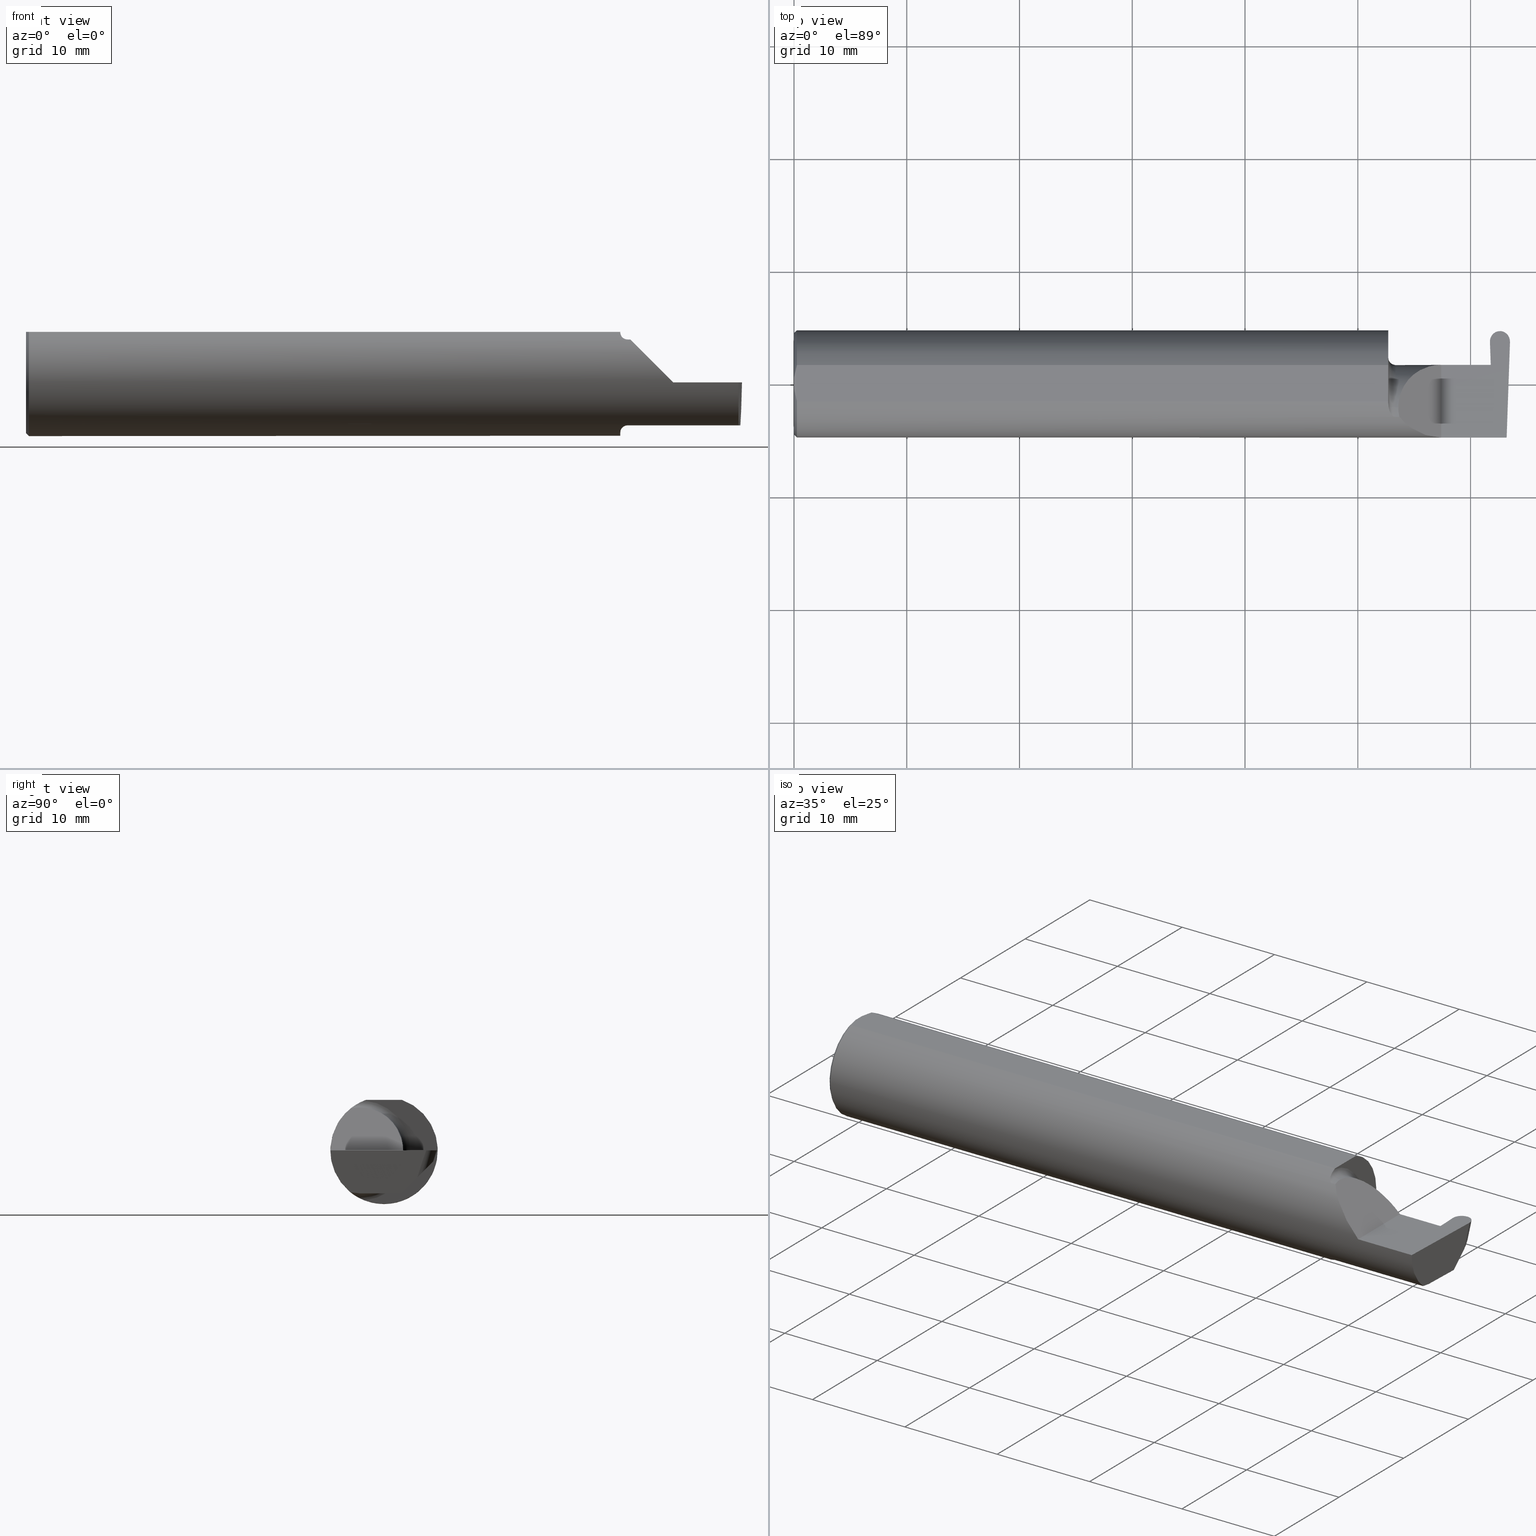
[diagram: canonical four-view strip — front | top / right | iso, engineering-drawing reading convention]
A machine part, canonical four-view strip (front | top / right | iso — engineering-drawing reading convention). The complete STEP part file that produces these views, byte-faithful:
ISO-10303-21;
HEADER;
FILE_DESCRIPTION (( 'STEP AP203' ),
    '1' );
FILE_NAME ('222173-GFR069-6.STEP',
    '2024-06-26T22:33:47',
    ( '' ),
    ( '' ),
    'SwSTEP 2.0',
    'SolidWorks 2024',
    '' );
FILE_SCHEMA (( 'CONFIG_CONTROL_DESIGN' ));
ENDSEC;

DATA;
#1 = CIRCLE ( 'NONE', #670, 0.1873499999999999888 ) ;
#2 = PLANE ( 'NONE',  #284 ) ;
#3 = DIRECTION ( 'NONE',  ( 0.000000000000000000, 0.000000000000000000, 1.000000000000000000 ) ) ;
#4 = CC_DESIGN_PERSON_AND_ORGANIZATION_ASSIGNMENT ( #705, #77, ( #672 ) ) ;
#5 =( BOUNDED_CURVE ( )  B_SPLINE_CURVE ( 3, ( #41, #292, #36, #789 ),
 .UNSPECIFIED., .F., .T. ) 
 B_SPLINE_CURVE_WITH_KNOTS ( ( 4, 4 ),
 ( 4.712388980384688786, 5.606916381293139295 ),
 .UNSPECIFIED. ) 
 CURVE ( )  GEOMETRIC_REPRESENTATION_ITEM ( )  RATIONAL_B_SPLINE_CURVE ( ( 1.000000000000000000, 0.9344226172588797619, 0.9344226172588797619, 1.000000000000000000 ) ) 
 REPRESENTATION_ITEM ( '' )  );
#6 = EDGE_LOOP ( 'NONE', ( #606, #157, #544, #393 ) ) ;
#7 = PERSON_AND_ORGANIZATION_ROLE ( 'design_owner' ) ;
#8 = CARTESIAN_POINT ( 'NONE',  ( 2.076062863587535556, -0.08334999999999995191, -0.1677879614275112619 ) ) ;
#9 = ORIENTED_EDGE ( 'NONE', *, *, #613, .T. ) ;
#10 = EDGE_CURVE ( 'NONE', #319, #557, #539, .T. ) ;
#11 = MECHANICAL_CONTEXT ( 'NONE', #724, 'mechanical' ) ;
#12 = AXIS2_PLACEMENT_3D ( 'NONE', #283, #647, #415 ) ;
#13 = DIRECTION ( 'NONE',  ( -0.03489949670249274660, 0.9993908270190960952, 0.000000000000000000 ) ) ;
#14 = LOCAL_TIME ( 15, 33, 47.00000000000000000, #700 ) ;
#15 = CARTESIAN_POINT ( 'NONE',  ( 2.086319809340846820, -0.1102629523538395800, 0.1514982751257170079 ) ) ;
#16 = VECTOR ( 'NONE', #774, 39.37007874015748143 ) ;
#17 = CALENDAR_DATE ( 2024, 26, 6 ) ;
#18 = FACE_OUTER_BOUND ( 'NONE', #346, .T. ) ;
#19 = CARTESIAN_POINT ( 'NONE',  ( 2.488255780514392335, -0.1873499999999999888, 0.000000000000000000 ) ) ;
#20 = EDGE_CURVE ( 'NONE', #267, #304, #796, .T. ) ;
#21 = EDGE_LOOP ( 'NONE', ( #127, #92, #225, #524, #801, #598 ) ) ;
#22 = CARTESIAN_POINT ( 'NONE',  ( 2.080806801261507299, -0.1009700360460131230, -0.1578590382459147679 ) ) ;
#23 = CARTESIAN_POINT ( 'NONE',  ( 2.435477586440800035, -0.08344389926001473390, -0.1500000000000000500 ) ) ;
#24 = VERTEX_POINT ( 'NONE', #648 ) ;
#25 = DATE_AND_TIME ( #140, #14 ) ;
#26 = CARTESIAN_POINT ( 'NONE',  ( 2.077380638915945710, -0.09060738690120610783, -0.1640321561807271122 ) ) ;
#27 = EDGE_CURVE ( 'NONE', #272, #190, #466, .T. ) ;
#28 = CIRCLE ( 'NONE', #198, 0.1773500000000005072 ) ;
#29 = CARTESIAN_POINT ( 'NONE',  ( 0.005151108632379595466, -0.04888864921576189376, 0.1763499999999999235 ) ) ;
#30 = ORIENTED_EDGE ( 'NONE', *, *, #142, .T. ) ;
#31 = VECTOR ( 'NONE', #450, 39.37007874015748143 ) ;
#32 = CARTESIAN_POINT ( 'NONE',  ( 2.435362477069695331, 0.06409798100083127781, -0.1462050705423010299 ) ) ;
#33 = CARTESIAN_POINT ( 'NONE',  ( 2.429919976494118838, 0.1468259978756917272, 0.000000000000000000 ) ) ;
#34 = ORIENTED_EDGE ( 'NONE', *, *, #749, .F. ) ;
#35 =( BOUNDED_CURVE ( )  B_SPLINE_CURVE ( 3, ( #265, #513, #706, #395 ),
 .UNSPECIFIED., .F., .T. ) 
 B_SPLINE_CURVE_WITH_KNOTS ( ( 4, 4 ),
 ( 6.055147272130144920, 6.283185307179586232 ),
 .UNSPECIFIED. ) 
 CURVE ( )  GEOMETRIC_REPRESENTATION_ITEM ( )  RATIONAL_B_SPLINE_CURVE ( ( 1.000000000000000000, 0.9956712472009932036, 0.9956712472009932036, 1.000000000000000000 ) ) 
 REPRESENTATION_ITEM ( '' )  );
#36 = CARTESIAN_POINT ( 'NONE',  ( 2.150065971957464850, -0.1623470442677540371, 0.1099340280425340488 ) ) ;
#37 = CARTESIAN_POINT ( 'NONE',  ( 2.496724085642930024, 0.1068785413084647751, -0.1034245102346855322 ) ) ;
#38 = UNCERTAINTY_MEASURE_WITH_UNIT (LENGTH_MEASURE( 1.000000000000000082E-05 ), #571, 'distance_accuracy_value', 'NONE');
#39 = EDGE_CURVE ( 'NONE', #330, #399, #471, .T. ) ;
#40 = ORIENTED_EDGE ( 'NONE', *, *, #74, .T. ) ;
#41 = CARTESIAN_POINT ( 'NONE',  ( 2.260000000000000231, -0.1873499999999999888, 2.939152317953647352E-17 ) ) ;
#42 = CARTESIAN_POINT ( 'NONE',  ( 2.429907053872649048, 0.1469717285548437502, 0.0004485129120875279321 ) ) ;
#43 = ORIENTED_EDGE ( 'NONE', *, *, #252, .F. ) ;
#44 = CC_DESIGN_PERSON_AND_ORGANIZATION_ASSIGNMENT ( #456, #562, ( #160 ) ) ;
#45 = DIRECTION ( 'NONE',  ( -1.000000000000000000, -0.000000000000000000, -0.000000000000000000 ) ) ;
#46 = AXIS2_PLACEMENT_3D ( 'NONE', #104, #593, #664 ) ;
#47 = DIRECTION ( 'NONE',  ( 0.000000000000000000, 0.000000000000000000, -1.000000000000000000 ) ) ;
#48 = ORIENTED_EDGE ( 'NONE', *, *, #749, .T. ) ;
#49 = EDGE_CURVE ( 'NONE', #190, #591, #518, .T. ) ;
#50 = FACE_OUTER_BOUND ( 'NONE', #406, .T. ) ;
#51 = CARTESIAN_POINT ( 'NONE',  ( 2.172132034355963359, 0.06665000000000001479, 0.08786796564403576149 ) ) ;
#52 = ORIENTED_EDGE ( 'NONE', *, *, #387, .T. ) ;
#53 = DIRECTION ( 'NONE',  ( -0.7071067811865509034, 0.000000000000000000, 0.7071067811865440200 ) ) ;
#54 = EDGE_CURVE ( 'NONE', #477, #708, #91, .T. ) ;
#55 = ORIENTED_EDGE ( 'NONE', *, *, #463, .F. ) ;
#56 = PRODUCT_DEFINITION_FORMATION_WITH_SPECIFIED_SOURCE ( 'ANY', '', #458, .NOT_KNOWN. ) ;
#57 = CARTESIAN_POINT ( 'NONE',  ( 2.423538215936590134, 0.06658908270190941336, -0.003489949670254703304 ) ) ;
#58 = CARTESIAN_POINT ( 'NONE',  ( 2.488255780514392335, -0.1873499999999999888, 0.000000000000000000 ) ) ;
#59 = CIRCLE ( 'NONE', #547, 0.1873499999999999888 ) ;
#60 = ORIENTED_EDGE ( 'NONE', *, *, #63, .T. ) ;
#61 = LINE ( 'NONE', #305, #108 ) ;
#62 = CARTESIAN_POINT ( 'NONE',  ( 2.497216288900020675, 0.1162741585162865993, -0.09402889302686361084 ) ) ;
#63 = EDGE_CURVE ( 'NONE', #414, #696, #572, .T. ) ;
#64 = CARTESIAN_POINT ( 'NONE',  ( 2.100000000000000089, -0.08334999999999997966, 0.1749999999999999889 ) ) ;
#65 = DIRECTION ( 'NONE',  ( -1.000000000000000000, -0.000000000000000000, -0.000000000000000000 ) ) ;
#66 = ORGANIZATION ( 'UNSPECIFIED', 'UNSPECIFIED', '' ) ;
#67 = ORIENTED_EDGE ( 'NONE', *, *, #742, .T. ) ;
#68 = CARTESIAN_POINT ( 'NONE',  ( 2.075000000000000178, -0.08334999999999997966, -0.1500000000000000500 ) ) ;
#69 = DIRECTION ( 'NONE',  ( 0.000000000000000000, 0.000000000000000000, 1.000000000000000000 ) ) ;
#70 = AXIS2_PLACEMENT_3D ( 'NONE', #161, #531, #799 ) ;
#71 = PERSON_AND_ORGANIZATION_ROLE ( 'design_supplier' ) ;
#72 = EDGE_CURVE ( 'NONE', #319, #492, #507, .T. ) ;
#73 = CARTESIAN_POINT ( 'NONE',  ( 0.000000000000000000, 0.000000000000000000, 0.000000000000000000 ) ) ;
#74 = EDGE_CURVE ( 'NONE', #304, #402, #629, .T. ) ;
#75 = VERTEX_POINT ( 'NONE', #95 ) ;
#76 = EDGE_LOOP ( 'NONE', ( #729, #356, #236, #349 ) ) ;
#77 = PERSON_AND_ORGANIZATION_ROLE ( 'creator' ) ;
#78 = CARTESIAN_POINT ( 'NONE',  ( 2.097868998470238555, -0.1172600179964006645, -0.1461167706989303650 ) ) ;
#79 = CARTESIAN_POINT ( 'NONE',  ( 2.464922720000000567, 0.1810028137283835048, -0.01122488514516581902 ) ) ;
#80 = ORIENTED_EDGE ( 'NONE', *, *, #49, .F. ) ;
#81 = PERSON_AND_ORGANIZATION ( #82, #66 ) ;
#82 = PERSON ( 'UNSPECIFIED', 'UNSPECIFIED', 'UNSPECIFIED', ('UNSPECIFIED'), ('UNSPECIFIED'), ('UNSPECIFIED') ) ;
#83 = CARTESIAN_POINT ( 'NONE',  ( 0.009999999999999346217, 0.000000000000000000, 0.000000000000000000 ) ) ;
#84 = CARTESIAN_POINT ( 'NONE',  ( 2.487246082891137355, -0.1873500000000000165, -0.05781030015605123640 ) ) ;
#85 = VERTEX_POINT ( 'NONE', #210 ) ;
#86 = CARTESIAN_POINT ( 'NONE',  ( 2.464922720000000123, 0.1722898021506072963, -0.03801324939254225460 ) ) ;
#87 = CARTESIAN_POINT ( 'NONE',  ( 2.464922720000000123, 0.1722898021506072963, -0.03801324939254225460 ) ) ;
#88 = ORIENTED_EDGE ( 'NONE', *, *, #74, .F. ) ;
#89 = ADVANCED_FACE ( 'NONE', ( #260 ), #511, .F. ) ;
#90 = CARTESIAN_POINT ( 'NONE',  ( 2.092163414264744947, -0.1151183835841405045, -0.1478135984872521735 ) ) ;
#91 = LINE ( 'NONE', #405, #31 ) ;
#92 = ORIENTED_EDGE ( 'NONE', *, *, #688, .T. ) ;
#93 = PLANE ( 'NONE',  #814 ) ;
#94 = AXIS2_PLACEMENT_3D ( 'NONE', #756, #144, #636 ) ;
#95 = CARTESIAN_POINT ( 'NONE',  ( 0.000000000000000000, 0.000000000000000000, -0.1773500000000005072 ) ) ;
#96 = ORIENTED_EDGE ( 'NONE', *, *, #63, .F. ) ;
#97 = CIRCLE ( 'NONE', #149, 0.1749999999999999889 ) ;
#98 = CARTESIAN_POINT ( 'NONE',  ( 2.076062863587535556, -0.08334999999999995191, -0.1677879614275112619 ) ) ;
#99 = EDGE_CURVE ( 'NONE', #806, #595, #777, .T. ) ;
#100 = FACE_OUTER_BOUND ( 'NONE', #784, .T. ) ;
#101 = EDGE_CURVE ( 'NONE', #557, #403, #343, .T. ) ;
#102 = VERTEX_POINT ( 'NONE', #214 ) ;
#103 = FACE_OUTER_BOUND ( 'NONE', #212, .T. ) ;
#104 = CARTESIAN_POINT ( 'NONE',  ( -0.001039370078740541395, 0.1723030515431495657, -0.03799999999999999906 ) ) ;
#105 = ORIENTED_EDGE ( 'NONE', *, *, #645, .T. ) ;
#106 = CARTESIAN_POINT ( 'NONE',  ( 0.009999999999999346217, 0.06325108694718235836, 0.1763499999999999235 ) ) ;
#107 = DIRECTION ( 'NONE',  ( 0.02739170151059973010, -0.3089010440752013031, -0.9506996579664918068 ) ) ;
#108 = VECTOR ( 'NONE', #436, 39.37007874015748143 ) ;
#109 = EDGE_CURVE ( 'NONE', #267, #696, #707, .T. ) ;
#110 = VECTOR ( 'NONE', #618, 39.37007874015748854 ) ;
#111 = ORIENTED_EDGE ( 'NONE', *, *, #474, .T. ) ;
#112 = DIRECTION ( 'NONE',  ( 0.02739170151060053154, 0.3089010440752012476, 0.9506996579664918068 ) ) ;
#113 = CARTESIAN_POINT ( 'NONE',  ( 2.075346246588685162, -0.07856197451716405433, -0.1701664510438046507 ) ) ;
#114 = EDGE_LOOP ( 'NONE', ( #778, #772, #580, #515, #96 ) ) ;
#115 = CARTESIAN_POINT ( 'NONE',  ( -0.001039370078740541395, 0.1846500000000000363, 0.000000000000000000 ) ) ;
#116 = FACE_OUTER_BOUND ( 'NONE', #615, .T. ) ;
#117 = ORIENTED_EDGE ( 'NONE', *, *, #20, .F. ) ;
#118 = DIRECTION ( 'NONE',  ( -1.000000000000000000, -0.000000000000000000, -0.000000000000000000 ) ) ;
#119 = CARTESIAN_POINT ( 'NONE',  ( 0.000000000000000000, 0.000000000000000000, 0.000000000000000000 ) ) ;
#120 = CIRCLE ( 'NONE', #485, 0.1500000000000000500 ) ;
#121 = ORIENTED_EDGE ( 'NONE', *, *, #645, .F. ) ;
#122 = AXIS2_PLACEMENT_3D ( 'NONE', #793, #350, #797 ) ;
#123 = CARTESIAN_POINT ( 'NONE',  ( 2.432719784034706123, 0.06664999999999998703, 0.000000000000000000 ) ) ;
#124 = CARTESIAN_POINT ( 'NONE',  ( 2.432629151099980458, 0.1162741585162867242, -0.09402889302686344430 ) ) ;
#125 = AXIS2_PLACEMENT_3D ( 'NONE', #344, #388, #703 ) ;
#126 = ADVANCED_FACE ( 'NONE', ( #712 ), #522, .F. ) ;
#127 = ORIENTED_EDGE ( 'NONE', *, *, #781, .T. ) ;
#128 = CARTESIAN_POINT ( 'NONE',  ( 0.000000000000000000, 0.000000000000000000, 0.000000000000000000 ) ) ;
#129 = CARTESIAN_POINT ( 'NONE',  ( 0.009999999999999346217, 0.000000000000000000, 0.000000000000000000 ) ) ;
#130 = EDGE_LOOP ( 'NONE', ( #34, #455, #9 ) ) ;
#131 = CARTESIAN_POINT ( 'NONE',  ( 2.426363182754930126, 0.2358845819710073122, 0.02558153042785848985 ) ) ;
#132 = ADVANCED_FACE ( 'NONE', ( #100 ), #167, .T. ) ;
#133 = AXIS2_PLACEMENT_3D ( 'NONE', #347, #173, #533 ) ;
#134 = ORIENTED_EDGE ( 'NONE', *, *, #517, .T. ) ;
#135 = COORDINATED_UNIVERSAL_TIME_OFFSET ( 8, 0, .BEHIND. ) ;
#136 = CARTESIAN_POINT ( 'NONE',  ( 2.100000000000000089, -0.1172600179964006922, 0.1461167706989303927 ) ) ;
#137 = APPROVAL_STATUS ( 'not_yet_approved' ) ;
#138 = CARTESIAN_POINT ( 'NONE',  ( 2.429919976494118838, 0.1468259978756917272, 0.000000000000000000 ) ) ;
#139 = CARTESIAN_POINT ( 'NONE',  ( 2.077158970028690099, -0.09067355718685703170, 0.1641499263364886163 ) ) ;
#140 = CALENDAR_DATE ( 2024, 26, 6 ) ;
#141 = DIRECTION ( 'NONE',  ( 0.000000000000000000, 0.000000000000000000, 1.000000000000000000 ) ) ;
#142 = EDGE_CURVE ( 'NONE', #216, #330, #716, .T. ) ;
#143 = ORIENTED_EDGE ( 'NONE', *, *, #322, .T. ) ;
#144 = DIRECTION ( 'NONE',  ( 0.000000000000000000, 0.000000000000000000, 1.000000000000000000 ) ) ;
#145 = CARTESIAN_POINT ( 'NONE',  ( 2.443634147710784355, 0.1846500000000000641, 6.874166512331093267E-18 ) ) ;
#146 = CC_DESIGN_SECURITY_CLASSIFICATION ( #160, ( #56 ) ) ;
#147 = CARTESIAN_POINT ( 'NONE',  ( 2.464922720000000567, 0.1781008794198421508, -0.02015612059252750929 ) ) ;
#148 = ADVANCED_FACE ( 'NONE', ( #116 ), #656, .F. ) ;
#149 = AXIS2_PLACEMENT_3D ( 'NONE', #612, #372, #3 ) ;
#150 = ORIENTED_EDGE ( 'NONE', *, *, #263, .T. ) ;
#151 = APPROVAL_DATE_TIME ( #577, #467 ) ;
#152 = CARTESIAN_POINT ( 'NONE',  ( -0.001039370078740541395, 0.06030305154315079852, -0.1500000000000000500 ) ) ;
#153 = EDGE_LOOP ( 'NONE', ( #451, #121, #80, #671 ) ) ;
#154 = DIRECTION ( 'NONE',  ( -0.000000000000000000, 1.000000000000000000, -0.000000000000000000 ) ) ;
#155 =( BOUNDED_CURVE ( )  B_SPLINE_CURVE ( 3, ( #348, #279, #526, #171 ),
 .UNSPECIFIED., .F., .F. ) 
 B_SPLINE_CURVE_WITH_KNOTS ( ( 4, 4 ),
 ( 3.159045946109736214, 4.694935687864695950 ),
 .UNSPECIFIED. ) 
 CURVE ( )  GEOMETRIC_REPRESENTATION_ITEM ( )  RATIONAL_B_SPLINE_CURVE ( ( 1.000000000000000000, 0.8128932002257790446, 0.8128932002257790446, 1.000000000000000000 ) ) 
 REPRESENTATION_ITEM ( '' )  );
#156 = DIRECTION ( 'NONE',  ( -0.01299916717458325655, 0.7070470357949164564, 0.7070470357949245610 ) ) ;
#157 = ORIENTED_EDGE ( 'NONE', *, *, #197, .F. ) ;
#158 = EDGE_CURVE ( 'NONE', #272, #177, #155, .T. ) ;
#159 = CARTESIAN_POINT ( 'NONE',  ( 2.075000000000000178, 0.1873499999999998500, 0.1763499999999999235 ) ) ;
#160 = SECURITY_CLASSIFICATION ( '', '', #316 ) ;
#161 = CARTESIAN_POINT ( 'NONE',  ( 0.000000000000000000, 0.000000000000000000, 0.000000000000000000 ) ) ;
#162 = DESIGN_CONTEXT ( 'detailed design', #766, 'design' ) ;
#163 = ORIENTED_EDGE ( 'NONE', *, *, #613, .F. ) ;
#164 = VECTOR ( 'NONE', #107, 39.37007874015748854 ) ;
#165 = CARTESIAN_POINT ( 'NONE',  ( 2.499938386127352086, 0.1469717285548436947, 0.0004485129120875658250 ) ) ;
#166 = CC_DESIGN_DATE_AND_TIME_ASSIGNMENT ( #204, #326, ( #160 ) ) ;
#167 = CYLINDRICAL_SURFACE ( 'NONE', #314, 0.03499999999999998945 ) ;
#168 = ORIENTED_EDGE ( 'NONE', *, *, #363, .T. ) ;
#169 = LINE ( 'NONE', #165, #649 ) ;
#170 = EDGE_CURVE ( 'NONE', #203, #365, #597, .T. ) ;
#171 = CARTESIAN_POINT ( 'NONE',  ( 2.432814406597916257, 0.06655862405284602989, -0.005234924505382013322 ) ) ;
#172 = ORIENTED_EDGE ( 'NONE', *, *, #361, .F. ) ;
#173 = DIRECTION ( 'NONE',  ( -1.224646799147353947E-16, 0.000000000000000000, -1.000000000000000000 ) ) ;
#174 = DIRECTION ( 'NONE',  ( -0.03489949670249532787, -0.9993908270190959842, 0.000000000000000000 ) ) ;
#175 = APPROVAL_PERSON_ORGANIZATION ( #81, #467, #331 ) ;
#176 = EDGE_CURVE ( 'NONE', #787, #795, #505, .T. ) ;
#177 = VERTEX_POINT ( 'NONE', #731 ) ;
#178 = VECTOR ( 'NONE', #514, 39.37007874015748143 ) ;
#179 = CARTESIAN_POINT ( 'NONE',  ( 2.423568674585635296, 0.06661954135095467244, -0.001744974835127351652 ) ) ;
#180 = AXIS2_PLACEMENT_3D ( 'NONE', #302, #295, #53 ) ;
#181 = FACE_OUTER_BOUND ( 'NONE', #76, .T. ) ;
#182 = ORIENTED_EDGE ( 'NONE', *, *, #559, .T. ) ;
#183 = APPROVAL ( #385, 'UNSPECIFIED' ) ;
#184 = CARTESIAN_POINT ( 'NONE',  ( 0.000000000000000000, 0.000000000000000000, 0.000000000000000000 ) ) ;
#185 = DIRECTION ( 'NONE',  ( 0.000000000000000000, 0.000000000000000000, 1.000000000000000000 ) ) ;
#186 = ORIENTED_EDGE ( 'NONE', *, *, #209, .T. ) ;
#187 = CARTESIAN_POINT ( 'NONE',  ( 2.423599133234680458, 0.06664999999999991764, 0.000000000000000000 ) ) ;
#188 = EDGE_CURVE ( 'NONE', #403, #102, #475, .T. ) ;
#189 = CARTESIAN_POINT ( 'NONE',  ( 2.100000000000000089, -0.08334999999999996578, -0.1749999999999999889 ) ) ;
#190 = VERTEX_POINT ( 'NONE', #364 ) ;
#191 = PLANE ( 'NONE',  #287 ) ;
#192 = LINE ( 'NONE', #552, #650 ) ;
#193 = CARTESIAN_POINT ( 'NONE',  ( 2.432719784034706123, 0.06664999999999998703, 0.000000000000000000 ) ) ;
#194 = ORIENTED_EDGE ( 'NONE', *, *, #543, .F. ) ;
#195 =( NAMED_UNIT ( * ) PLANE_ANGLE_UNIT ( ) SI_UNIT ( $, .RADIAN. ) );
#196 = DIRECTION ( 'NONE',  ( 0.000000000000000000, 0.000000000000000000, -1.000000000000000000 ) ) ;
#197 = EDGE_CURVE ( 'NONE', #561, #75, #237, .T. ) ;
#198 = AXIS2_PLACEMENT_3D ( 'NONE', #184, #238, #377 ) ;
#199 = ORIENTED_EDGE ( 'NONE', *, *, #719, .T. ) ;
#200 = CARTESIAN_POINT ( 'NONE',  ( 2.423599133234680458, 0.06664999999999991764, 0.000000000000000000 ) ) ;
#201 = CARTESIAN_POINT ( 'NONE',  ( 2.100000000000000089, -0.08334999999999999354, 0.000000000000000000 ) ) ;
#202 = AXIS2_PLACEMENT_3D ( 'NONE', #791, #600, #47 ) ;
#203 = VERTEX_POINT ( 'NONE', #33 ) ;
#204 = DATE_AND_TIME ( #17, #722 ) ;
#205 = DIRECTION ( 'NONE',  ( -1.000000000000000000, -0.000000000000000000, -0.000000000000000000 ) ) ;
#206 = CARTESIAN_POINT ( 'NONE',  ( 2.488151344270815191, -0.1172600179964006090, -0.1461167706989303927 ) ) ;
#207 = ORIENTED_EDGE ( 'NONE', *, *, #288, .F. ) ;
#208 = DIRECTION ( 'NONE',  ( 1.000000000000000000, 0.000000000000000000, 0.000000000000000000 ) ) ;
#209 = EDGE_CURVE ( 'NONE', #714, #621, #425, .T. ) ;
#210 = CARTESIAN_POINT ( 'NONE',  ( 2.113883229301068312, -0.1172600179964003175, 0.1461167706989304760 ) ) ;
#211 = PRODUCT_DEFINITION_SHAPE ( 'NONE', 'NONE',  #672 ) ;
#212 = EDGE_LOOP ( 'NONE', ( #536, #430, #755, #540, #421, #780, #88, #172, #186 ) ) ;
#213 = DIRECTION ( 'NONE',  ( 0.000000000000000000, 0.000000000000000000, -1.000000000000000000 ) ) ;
#214 = CARTESIAN_POINT ( 'NONE',  ( 2.494284159956727809, 0.06030305154315079852, -0.1500000000000000500 ) ) ;
#215 = VECTOR ( 'NONE', #510, 39.37007874015748143 ) ;
#216 = VERTEX_POINT ( 'NONE', #542 ) ;
#217 = DIRECTION ( 'NONE',  ( 0.000000000000000000, 0.000000000000000000, -1.000000000000000000 ) ) ;
#218 = EDGE_CURVE ( 'NONE', #75, #744, #412, .T. ) ;
#219 = ORIENTED_EDGE ( 'NONE', *, *, #101, .F. ) ;
#220 = DIRECTION ( 'NONE',  ( 7.486943585141933705E-15, -0.9998476951563912696, 0.01745240643728358451 ) ) ;
#221 = VERTEX_POINT ( 'NONE', #534 ) ;
#222 = CYLINDRICAL_SURFACE ( 'NONE', #340, 0.1873499999999999888 ) ;
#223 = CIRCLE ( 'NONE', #667, 0.02499999999999993894 ) ;
#224 = DIRECTION ( 'NONE',  ( -0.03701744261649894674, -0.7066221440565398915, -0.7066221440565479961 ) ) ;
#225 = ORIENTED_EDGE ( 'NONE', *, *, #446, .T. ) ;
#226 = CIRCLE ( 'NONE', #683, 0.1873499999999999888 ) ;
#227 = LINE ( 'NONE', #663, #584 ) ;
#228 = CARTESIAN_POINT ( 'NONE',  ( 2.500694673384347144, 0.1688532867831435691, 4.157668328071865437E-18 ) ) ;
#229 = ORIENTED_EDGE ( 'NONE', *, *, #719, .F. ) ;
#230 = CARTESIAN_POINT ( 'NONE',  ( 2.075000000000000178, -0.06851976604679065053, -0.1743704796142198643 ) ) ;
#231 = DIRECTION ( 'NONE',  ( 0.000000000000000000, 0.9510565162951533091, -0.3090169943749482284 ) ) ;
#232 = ORIENTED_EDGE ( 'NONE', *, *, #10, .T. ) ;
#233 = CARTESIAN_POINT ( 'NONE',  ( 0.000000000000000000, 0.01880691362239451242, 0.1763499999999999235 ) ) ;
#234 = CARTESIAN_POINT ( 'NONE',  ( 2.488151344270815191, -0.1172600179964006090, -0.1461167706989303927 ) ) ;
#235 = CC_DESIGN_DATE_AND_TIME_ASSIGNMENT ( #258, #447, ( #672 ) ) ;
#236 = ORIENTED_EDGE ( 'NONE', *, *, #732, .T. ) ;
#237 = CIRCLE ( 'NONE', #70, 0.1773500000000005072 ) ;
#238 = DIRECTION ( 'NONE',  ( -1.000000000000000000, -0.000000000000000000, -0.000000000000000000 ) ) ;
#239 = PLANE ( 'NONE',  #180 ) ;
#240 = EDGE_LOOP ( 'NONE', ( #280, #409, #134, #441 ) ) ;
#241 = ADVANCED_FACE ( 'NONE', ( #181 ), #482, .T. ) ;
#242 = CARTESIAN_POINT ( 'NONE',  ( 2.423507757287544528, 0.06655862405286416816, -0.005234924505382053221 ) ) ;
#243 = LINE ( 'NONE', #442, #300 ) ;
#244 = ORIENTED_EDGE ( 'NONE', *, *, #170, .F. ) ;
#245 = CARTESIAN_POINT ( 'NONE',  ( 2.489267684857003893, -0.08335000000000014619, -0.1500000000000000500 ) ) ;
#246 = CARTESIAN_POINT ( 'NONE',  ( 2.876828993045917215, 0.1873499999999998500, 0.1763499999999999235 ) ) ;
#247 = CARTESIAN_POINT ( 'NONE',  ( 2.488494925208532216, -0.1061291577212409021, -0.1486999626928446894 ) ) ;
#248 = FACE_OUTER_BOUND ( 'NONE', #21, .T. ) ;
#249 = VECTOR ( 'NONE', #582, 39.37007874015748143 ) ;
#250 = CYLINDRICAL_SURFACE ( 'NONE', #257, 0.03500000000000000333 ) ;
#251 = DIRECTION ( 'NONE',  ( 0.000000000000000000, 0.000000000000000000, 1.000000000000000000 ) ) ;
#252 = EDGE_CURVE ( 'NONE', #102, #483, #674, .T. ) ;
#253 = VERTEX_POINT ( 'NONE', #538 ) ;
#254 = PERSON_AND_ORGANIZATION ( #82, #66 ) ;
#255 = CARTESIAN_POINT ( 'NONE',  ( 2.464599306921210875, 0.1846500000000000363, 0.000000000000000000 ) ) ;
#256 = ORIENTED_EDGE ( 'NONE', *, *, #798, .T. ) ;
#257 = AXIS2_PLACEMENT_3D ( 'NONE', #490, #745, #811 ) ;
#258 = DATE_AND_TIME ( #759, #761 ) ;
#259 = DIRECTION ( 'NONE',  ( 0.000000000000000000, 0.000000000000000000, 1.000000000000000000 ) ) ;
#260 = FACE_OUTER_BOUND ( 'NONE', #489, .T. ) ;
#261 = CONICAL_SURFACE ( 'NONE', #370, 0.1773500000000005072, 0.7853981633974551624 ) ;
#262 = ORIENTED_EDGE ( 'NONE', *, *, #398, .F. ) ;
#263 = EDGE_CURVE ( 'NONE', #575, #626, #614, .T. ) ;
#264 = SHAPE_DEFINITION_REPRESENTATION ( #211, #685 ) ;
#265 = CARTESIAN_POINT ( 'NONE',  ( 2.113883229301068312, -0.1172600179964003175, 0.1461167706989304760 ) ) ;
#266 = CARTESIAN_POINT ( 'NONE',  ( 2.432961747410768538, 0.1946777917142868963, -0.01562525982886238049 ) ) ;
#267 = VERTEX_POINT ( 'NONE', #234 ) ;
#268 = APPROVAL_DATE_TIME ( #25, #183 ) ;
#269 = CC_DESIGN_PERSON_AND_ORGANIZATION_ASSIGNMENT ( #765, #71, ( #56 ) ) ;
#270 = CARTESIAN_POINT ( 'NONE',  ( 2.075000000000000178, -0.08334999999999999354, 0.000000000000000000 ) ) ;
#271 = CARTESIAN_POINT ( 'NONE',  ( 2.079075010165367665, -0.09778159395695856793, 0.1599914159748310749 ) ) ;
#272 = VERTEX_POINT ( 'NONE', #794 ) ;
#273 = FACE_OUTER_BOUND ( 'NONE', #114, .T. ) ;
#274 = EDGE_CURVE ( 'NONE', #575, #414, #499, .T. ) ;
#275 = DIRECTION ( 'NONE',  ( -1.000000000000000000, -0.000000000000000000, -0.000000000000000000 ) ) ;
#276 = CLOSED_SHELL ( 'NONE', ( #713, #659, #334, #603, #352, #620, #691, #307, #565, #298, #677, #444, #497, #438, #241, #324, #89, #148, #527, #126, #810, #763, #132 ) ) ;
#277 = ORIENTED_EDGE ( 'NONE', *, *, #398, .T. ) ;
#278 = CARTESIAN_POINT ( 'NONE',  ( 2.432719784034706123, 0.06664999999999998703, 0.000000000000000000 ) ) ;
#279 = CARTESIAN_POINT ( 'NONE',  ( 2.435450603568175776, 0.002105059811798080851, -0.1500000000000000777 ) ) ;
#280 = ORIENTED_EDGE ( 'NONE', *, *, #611, .T. ) ;
#281 = DIRECTION ( 'NONE',  ( -0.01806954526206906372, 0.01744955702544845680, 0.9996844524616943506 ) ) ;
#282 = ORIENTED_EDGE ( 'NONE', *, *, #413, .T. ) ;
#283 = CARTESIAN_POINT ( 'NONE',  ( 2.100000000000000089, -0.08334999999999997966, 0.000000000000000000 ) ) ;
#284 = AXIS2_PLACEMENT_3D ( 'NONE', #748, #431, #362 ) ;
#285 = CARTESIAN_POINT ( 'NONE',  ( 0.000000000000000000, 0.000000000000000000, -0.1773500000000005072 ) ) ;
#286 = ORIENTED_EDGE ( 'NONE', *, *, #342, .T. ) ;
#287 = AXIS2_PLACEMENT_3D ( 'NONE', #803, #746, #437 ) ;
#288 = EDGE_CURVE ( 'NONE', #216, #626, #97, .T. ) ;
#289 = CARTESIAN_POINT ( 'NONE',  ( 0.000000000000000000, -0.01880691362239451242, 0.1763499999999999235 ) ) ;
#290 = DIRECTION ( 'NONE',  ( 0.02739170151059974051, -0.3089010440752013587, -0.9506996579664920288 ) ) ;
#291 = ORIENTED_EDGE ( 'NONE', *, *, #142, .F. ) ;
#292 = CARTESIAN_POINT ( 'NONE',  ( 2.202189699843948301, -0.1873500000000000443, 0.05781030015605120170 ) ) ;
#293 = CARTESIAN_POINT ( 'NONE',  ( 2.075000000000000178, -0.06851976604679065053, -0.1743704796142198643 ) ) ;
#294 = EDGE_LOOP ( 'NONE', ( #194, #589, #52, #736 ) ) ;
#295 = DIRECTION ( 'NONE',  ( -0.7071067811865441310, 0.000000000000000000, -0.7071067811865510144 ) ) ;
#296 = TOROIDAL_SURFACE ( 'NONE', #12, 0.1749999999999999889, 0.02499999999999993894 ) ;
#297 = LOCAL_TIME ( 15, 33, 47.00000000000000000, #581 ) ;
#298 = ADVANCED_FACE ( 'NONE', ( #248 ), #812, .T. ) ;
#299 = ORIENTED_EDGE ( 'NONE', *, *, #101, .T. ) ;
#300 = VECTOR ( 'NONE', #690, 39.37007874015748143 ) ;
#301 = DIRECTION ( 'NONE',  ( 0.000000000000000000, 0.000000000000000000, -1.000000000000000000 ) ) ;
#302 = CARTESIAN_POINT ( 'NONE',  ( 2.260000000000000231, -0.2500000000000000555, 2.939152317953647352E-17 ) ) ;
#303 = CC_DESIGN_PERSON_AND_ORGANIZATION_ASSIGNMENT ( #697, #642, ( #56 ) ) ;
#304 = VERTEX_POINT ( 'NONE', #58 ) ;
#305 = CARTESIAN_POINT ( 'NONE',  ( 0.000000000000000000, -0.06325108694718235836, 0.1763499999999999235 ) ) ;
#306 = LINE ( 'NONE', #553, #249 ) ;
#307 = ADVANCED_FACE ( 'NONE', ( #608 ), #239, .F. ) ;
#308 = LINE ( 'NONE', #68, #634 ) ;
#309 = DIRECTION ( 'NONE',  ( 0.000000000000000000, 0.000000000000000000, -1.000000000000000000 ) ) ;
#310 = ORIENTED_EDGE ( 'NONE', *, *, #702, .F. ) ;
#311 = FACE_OUTER_BOUND ( 'NONE', #153, .T. ) ;
#312 = EDGE_CURVE ( 'NONE', #621, #319, #378, .T. ) ;
#313 = FACE_OUTER_BOUND ( 'NONE', #445, .T. ) ;
#314 = AXIS2_PLACEMENT_3D ( 'NONE', #470, #290, #231 ) ;
#315 = ORIENTED_EDGE ( 'NONE', *, *, #474, .F. ) ;
#316 = SECURITY_CLASSIFICATION_LEVEL ( 'unclassified' ) ;
#317 = CARTESIAN_POINT ( 'NONE',  ( 2.079475235432781677, -0.09757364237049401257, -0.1599863467203318512 ) ) ;
#318 = ORIENTED_EDGE ( 'NONE', *, *, #49, .T. ) ;
#319 = VERTEX_POINT ( 'NONE', #498 ) ;
#320 = APPROVAL_ROLE ( '' ) ;
#321 = LINE ( 'NONE', #465, #215 ) ;
#322 = EDGE_CURVE ( 'NONE', #360, #414, #345, .T. ) ;
#323 = CARTESIAN_POINT ( 'NONE',  ( 2.487208827712860337, -0.1623470442677540926, -0.1099340280425339100 ) ) ;
#324 = ADVANCED_FACE ( 'NONE', ( #429 ), #191, .F. ) ;
#325 = ORIENTED_EDGE ( 'NONE', *, *, #109, .F. ) ;
#326 = DATE_TIME_ROLE ( 'classification_date' ) ;
#327 = MANIFOLD_SOLID_BREP ( 'Radii', #276 ) ;
#328 = CARTESIAN_POINT ( 'NONE',  ( 2.100000000000000089, -0.1172600179964006922, 0.1461167706989303927 ) ) ;
#329 = TOROIDAL_SURFACE ( 'NONE', #790, 0.1749999999999999889, 0.02499999999999993894 ) ;
#330 = VERTEX_POINT ( 'NONE', #687 ) ;
#331 = APPROVAL_ROLE ( '' ) ;
#332 = CARTESIAN_POINT ( 'NONE',  ( 2.074999999999998845, 0.06655862405285899175, -0.005234924505529708547 ) ) ;
#333 = CARTESIAN_POINT ( 'NONE',  ( 2.485497127068696521, 0.1715825785496953304, -0.03872047299345424826 ) ) ;
#334 = ADVANCED_FACE ( 'NONE', ( #313 ), #764, .F. ) ;
#335 = ORIENTED_EDGE ( 'NONE', *, *, #188, .T. ) ;
#336 = APPLICATION_PROTOCOL_DEFINITION ( 'international standard', 'config_control_design', 1994, #766 ) ;
#337 = CARTESIAN_POINT ( 'NONE',  ( 2.076612951569643872, -0.08702537370779862835, -0.1659621904011592264 ) ) ;
#338 = CARTESIAN_POINT ( 'NONE',  ( 0.000000000000000000, -0.01880691362239451242, 0.1763499999999999235 ) ) ;
#339 = EDGE_LOOP ( 'NONE', ( #692, #723, #199 ) ) ;
#340 = AXIS2_PLACEMENT_3D ( 'NONE', #128, #439, #673 ) ;
#341 = FACE_OUTER_BOUND ( 'NONE', #495, .T. ) ;
#342 = EDGE_CURVE ( 'NONE', #806, #744, #59, .T. ) ;
#343 =( BOUNDED_CURVE ( )  B_SPLINE_CURVE ( 3, ( #87, #333, #579, #776 ),
 .UNSPECIFIED., .F., .F. ) 
 B_SPLINE_CURVE_WITH_KNOTS ( ( 4, 4 ),
 ( 3.149684762092791690, 4.726229945297545143 ),
 .UNSPECIFIED. ) 
 CURVE ( )  GEOMETRIC_REPRESENTATION_ITEM ( )  RATIONAL_B_SPLINE_CURVE ( ( 1.000000000000000000, 0.8033808900895229588, 0.8033808900895229588, 1.000000000000000000 ) ) 
 REPRESENTATION_ITEM ( '' )  );
#344 = CARTESIAN_POINT ( 'NONE',  ( -0.001039370078740541395, 0.1846500000000000363, 0.000000000000000000 ) ) ;
#345 = CIRCLE ( 'NONE', #710, 0.1500000000000000500 ) ;
#346 = EDGE_LOOP ( 'NONE', ( #567, #468, #310, #105, #168 ) ) ;
#347 = CARTESIAN_POINT ( 'NONE',  ( 2.500000000000000000, -0.2500000000000000555, 0.000000000000000000 ) ) ;
#348 = CARTESIAN_POINT ( 'NONE',  ( 2.435477556824171330, -0.08334999999999999354, -0.1500000000000000500 ) ) ;
#349 = ORIENTED_EDGE ( 'NONE', *, *, #288, .T. ) ;
#350 = DIRECTION ( 'NONE',  ( 1.000000000000000000, 0.000000000000000000, 0.000000000000000000 ) ) ;
#351 = DIRECTION ( 'NONE',  ( -0.9992386149554828290, 0.03489418134010802836, 0.01745240643728358798 ) ) ;
#352 = ADVANCED_FACE ( 'NONE', ( #555 ), #655, .T. ) ;
#353 = ORIENTED_EDGE ( 'NONE', *, *, #274, .T. ) ;
#354 = FACE_OUTER_BOUND ( 'NONE', #339, .T. ) ;
#355 = CARTESIAN_POINT ( 'NONE',  ( 2.486211292289216335, 0.1846500000000000641, 5.931370957970135947E-18 ) ) ;
#356 = ORIENTED_EDGE ( 'NONE', *, *, #688, .F. ) ;
#357 = AXIS2_PLACEMENT_3D ( 'NONE', #246, #251, #619 ) ;
#358 = CARTESIAN_POINT ( 'NONE',  ( 2.100000000000000089, -0.08334999999999999354, 0.000000000000000000 ) ) ;
#359 = CARTESIAN_POINT ( 'NONE',  ( 2.075000000000000178, -0.07359296612170564134, -0.1723769398647691242 ) ) ;
#360 = VERTEX_POINT ( 'NONE', #682 ) ;
#361 = EDGE_CURVE ( 'NONE', #714, #304, #503, .T. ) ;
#362 = DIRECTION ( 'NONE',  ( 0.01806679408117481400, 0.000000000000000000, -0.9998367821557817559 ) ) ;
#363 = EDGE_CURVE ( 'NONE', #177, #708, #753, .T. ) ;
#364 = CARTESIAN_POINT ( 'NONE',  ( 2.435432247424337948, 0.06030305154315081240, -0.1499999999999999944 ) ) ;
#365 = VERTEX_POINT ( 'NONE', #124 ) ;
#366 = CARTESIAN_POINT ( 'NONE',  ( 2.075000000000000178, 0.000000000000000000, 0.000000000000000000 ) ) ;
#367 = DIRECTION ( 'NONE',  ( -0.01806954526206906372, 0.01744955702544845680, 0.9996844524616943506 ) ) ;
#368 = APPROVAL_PERSON_ORGANIZATION ( #254, #183, #452 ) ;
#369 = VERTEX_POINT ( 'NONE', #440 ) ;
#370 = AXIS2_PLACEMENT_3D ( 'NONE', #73, #460, #217 ) ;
#371 = CARTESIAN_POINT ( 'NONE',  ( 2.075000000000000178, -0.08334999999999999354, 0.000000000000000000 ) ) ;
#372 = DIRECTION ( 'NONE',  ( -1.000000000000000000, -0.000000000000000000, -0.000000000000000000 ) ) ;
#373 = ORIENTED_EDGE ( 'NONE', *, *, #754, .T. ) ;
#374 = DIRECTION ( 'NONE',  ( 0.000000000000000000, 0.000000000000000000, 1.000000000000000000 ) ) ;
#375 = DIRECTION ( 'NONE',  ( 1.000000000000000000, 0.000000000000000000, 0.000000000000000000 ) ) ;
#376 = ORIENTED_EDGE ( 'NONE', *, *, #188, .F. ) ;
#377 = DIRECTION ( 'NONE',  ( 0.000000000000000000, 0.000000000000000000, -1.000000000000000000 ) ) ;
#378 = LINE ( 'NONE', #550, #695 ) ;
#379 = AXIS2_PLACEMENT_3D ( 'NONE', #371, #118, #374 ) ;
#380 = ORIENTED_EDGE ( 'NONE', *, *, #815, .F. ) ;
#381 = COORDINATED_UNIVERSAL_TIME_OFFSET ( 8, 0, .BEHIND. ) ;
#382 = VECTOR ( 'NONE', #768, 39.37007874015748143 ) ;
#383 = FACE_OUTER_BOUND ( 'NONE', #130, .T. ) ;
#384 = ORIENTED_EDGE ( 'NONE', *, *, #590, .T. ) ;
#385 = APPROVAL_STATUS ( 'not_yet_approved' ) ;
#386 = CARTESIAN_POINT ( 'NONE',  ( 2.086340974786207170, -0.1102890168945986071, -0.1514792188789464422 ) ) ;
#387 = EDGE_CURVE ( 'NONE', #402, #795, #243, .T. ) ;
#388 = DIRECTION ( 'NONE',  ( 0.000000000000000000, -0.9510565162951534202, 0.3090169943749482284 ) ) ;
#389 = EDGE_LOOP ( 'NONE', ( #325, #551, #40, #704, #380, #480, #291, #651, #548, #286, #641, #646, #532, #662, #617 ) ) ;
#390 = CARTESIAN_POINT ( 'NONE',  ( 2.489267684857003893, -0.08335000000000014619, -0.1500000000000000500 ) ) ;
#391 = PRODUCT_RELATED_PRODUCT_CATEGORY ( 'detail', '', ( #458 ) ) ;
#392 = CARTESIAN_POINT ( 'NONE',  ( 2.464922720000000123, 0.1722898021506072963, -0.03801324939254225460 ) ) ;
#393 = ORIENTED_EDGE ( 'NONE', *, *, #487, .F. ) ;
#394 = APPLICATION_PROTOCOL_DEFINITION ( 'international standard', 'config_control_design', 1994, #724 ) ;
#395 = CARTESIAN_POINT ( 'NONE',  ( 2.109999999999998987, -0.08334999999999999354, 0.1500000000000000500 ) ) ;
#396 = CARTESIAN_POINT ( 'NONE',  ( 2.462749325125258348, 0.2055125706609962077, 0.06420839026650314307 ) ) ;
#397 = VECTOR ( 'NONE', #224, 39.37007874015748143 ) ;
#398 = EDGE_CURVE ( 'NONE', #365, #557, #739, .T. ) ;
#399 = VERTEX_POINT ( 'NONE', #136 ) ;
#400 = APPROVAL_DATE_TIME ( #627, #654 ) ;
#401 = DIRECTION ( 'NONE',  ( 1.000000000000000000, -0.000000000000000000, -0.000000000000000000 ) ) ;
#402 = VERTEX_POINT ( 'NONE', #494 ) ;
#403 = VERTEX_POINT ( 'NONE', #62 ) ;
#404 = CARTESIAN_POINT ( 'NONE',  ( 2.733184360054361939, -0.08335000000000014619, -0.1500000000000000500 ) ) ;
#405 = CARTESIAN_POINT ( 'NONE',  ( 2.432719784034706123, 0.06664999999999998703, 0.000000000000000000 ) ) ;
#406 = EDGE_LOOP ( 'NONE', ( #434, #111, #163, #657 ) ) ;
#407 = DIRECTION ( 'NONE',  ( 0.000000000000000000, 1.000000000000000000, 0.000000000000000000 ) ) ;
#408 = CARTESIAN_POINT ( 'NONE',  ( 2.076062863587533780, -0.08334999999998819742, 0.1677879614275170628 ) ) ;
#409 = ORIENTED_EDGE ( 'NONE', *, *, #27, .T. ) ;
#410 = CARTESIAN_POINT ( 'NONE',  ( 2.075000000000000178, -0.08334999999999999354, 0.000000000000000000 ) ) ;
#411 = B_SPLINE_CURVE_WITH_KNOTS ( 'NONE', 3,
 ( #242, #57, #179, #187 ),
 .UNSPECIFIED., .F., .F.,
 ( 4, 4 ),
 ( 0.000000000000000000, 1.000000000000000000 ),
 .UNSPECIFIED. ) ;
#412 = LINE ( 'NONE', #285, #448 ) ;
#413 = EDGE_CURVE ( 'NONE', #795, #477, #306, .T. ) ;
#414 = VERTEX_POINT ( 'NONE', #506 ) ;
#415 = DIRECTION ( 'NONE',  ( 0.000000000000000000, 0.000000000000000000, 1.000000000000000000 ) ) ;
#416 = CARTESIAN_POINT ( 'NONE',  ( 2.260000000000000231, 0.06665000000000002867, 5.204748896376251932E-17 ) ) ;
#417 = ORIENTED_EDGE ( 'NONE', *, *, #176, .T. ) ;
#418 = CARTESIAN_POINT ( 'NONE',  ( 0.000000000000000000, 0.1873499999999998500, 0.1763499999999999235 ) ) ;
#419 =( GEOMETRIC_REPRESENTATION_CONTEXT ( 3 ) GLOBAL_UNCERTAINTY_ASSIGNED_CONTEXT ( ( #38 ) ) GLOBAL_UNIT_ASSIGNED_CONTEXT ( ( #571, #195, #773 ) ) REPRESENTATION_CONTEXT ( 'NONE', 'WORKASPACE' ) );
#420 = CARTESIAN_POINT ( 'NONE',  ( 2.076062863587535556, -0.08334999999999995191, -0.1677879614275112619 ) ) ;
#421 = ORIENTED_EDGE ( 'NONE', *, *, #413, .F. ) ;
#422 = AXIS2_PLACEMENT_3D ( 'NONE', #735, #351, #727 ) ;
#423 = CARTESIAN_POINT ( 'NONE',  ( 2.488151344270815191, -0.1172600179964006090, -0.1461167706989303927 ) ) ;
#424 = DIRECTION ( 'NONE',  ( 0.7071067811865426878, 0.000000000000000000, -0.7071067811865523467 ) ) ;
#425 =( BOUNDED_CURVE ( )  B_SPLINE_CURVE ( 3, ( #660, #228, #355, #740 ),
 .UNSPECIFIED., .F., .F. ) 
 B_SPLINE_CURVE_WITH_KNOTS ( ( 4, 4 ),
 ( 1.627103621474502271, 3.225696776093226248 ),
 .UNSPECIFIED. ) 
 CURVE ( )  GEOMETRIC_REPRESENTATION_ITEM ( )  RATIONAL_B_SPLINE_CURVE ( ( 1.000000000000000000, 0.7981407609938082626, 0.7981407609938082626, 1.000000000000000000 ) ) 
 REPRESENTATION_ITEM ( '' )  );
#426 = EDGE_LOOP ( 'NONE', ( #718, #150, #207, #30, #48, #143 ) ) ;
#427 = EDGE_CURVE ( 'NONE', #696, #575, #728, .T. ) ;
#428 = LINE ( 'NONE', #131, #110 ) ;
#429 = FACE_OUTER_BOUND ( 'NONE', #240, .T. ) ;
#430 = ORIENTED_EDGE ( 'NONE', *, *, #463, .T. ) ;
#431 = DIRECTION ( 'NONE',  ( 0.9998367324388628408, 0.0003153570480505038390, 0.01806679318280284691 ) ) ;
#432 = CARTESIAN_POINT ( 'NONE',  ( 2.444348312931303724, 0.1715825785496947475, -0.03872047299345480337 ) ) ;
#433 = CIRCLE ( 'NONE', #681, 0.1873499999999999888 ) ;
#434 = ORIENTED_EDGE ( 'NONE', *, *, #543, .T. ) ;
#435 = VECTOR ( 'NONE', #401, 39.37007874015748143 ) ;
#436 = DIRECTION ( 'NONE',  ( 1.000000000000000000, 0.000000000000000000, 0.000000000000000000 ) ) ;
#437 = DIRECTION ( 'NONE',  ( 1.000000000000000000, 0.000000000000000000, -0.000000000000000000 ) ) ;
#438 = ADVANCED_FACE ( 'NONE', ( #273 ), #521, .T. ) ;
#439 = DIRECTION ( 'NONE',  ( -1.000000000000000000, -0.000000000000000000, -0.000000000000000000 ) ) ;
#440 = CARTESIAN_POINT ( 'NONE',  ( 2.423507757287544528, 0.06655862405286416816, -0.005234924505382053221 ) ) ;
#441 = ORIENTED_EDGE ( 'NONE', *, *, #252, .T. ) ;
#442 = CARTESIAN_POINT ( 'NONE',  ( 2.260000000000000231, -0.2500000000000000555, 2.939152317953647352E-17 ) ) ;
#443 = VECTOR ( 'NONE', #154, 39.37007874015748143 ) ;
#444 = ADVANCED_FACE ( 'NONE', ( #569 ), #261, .T. ) ;
#445 = EDGE_LOOP ( 'NONE', ( #502, #353, #60 ) ) ;
#446 = EDGE_CURVE ( 'NONE', #253, #24, #767, .T. ) ;
#447 = DATE_TIME_ROLE ( 'creation_date' ) ;
#448 = VECTOR ( 'NONE', #424, 39.37007874015748143 ) ;
#449 = DIRECTION ( 'NONE',  ( 0.9992386149554829400, 0.03489418134010544709, 0.01745240643728358451 ) ) ;
#450 = DIRECTION ( 'NONE',  ( 1.000000000000000000, 7.488084056613103845E-15, -0.000000000000000000 ) ) ;
#451 = ORIENTED_EDGE ( 'NONE', *, *, #158, .T. ) ;
#452 = APPROVAL_ROLE ( '' ) ;
#453 = DIRECTION ( 'NONE',  ( -1.000000000000000000, -0.000000000000000000, -0.000000000000000000 ) ) ;
#454 = CARTESIAN_POINT ( 'NONE',  ( 2.076062863587533780, -0.08334999999998819742, 0.1677879614275170628 ) ) ;
#455 = ORIENTED_EDGE ( 'NONE', *, *, #39, .T. ) ;
#456 = PERSON_AND_ORGANIZATION ( #82, #66 ) ;
#457 = DIRECTION ( 'NONE',  ( 0.000000000000000000, 0.000000000000000000, 1.000000000000000000 ) ) ;
#458 = PRODUCT ( '222173-GFR069-6', '222173-GFR069-6', '', ( #11 ) ) ;
#459 = CALENDAR_DATE ( 2024, 26, 6 ) ;
#460 = DIRECTION ( 'NONE',  ( 1.000000000000000000, 0.000000000000000000, 0.000000000000000000 ) ) ;
#461 = CARTESIAN_POINT ( 'NONE',  ( 2.264922719999999945, -0.1172600179964006090, -0.1461167706989303927 ) ) ;
#462 = VECTOR ( 'NONE', #757, 39.37007874015748143 ) ;
#463 = EDGE_CURVE ( 'NONE', #492, #203, #564, .T. ) ;
#464 = EDGE_LOOP ( 'NONE', ( #229, #512, #666, #675 ) ) ;
#465 = CARTESIAN_POINT ( 'NONE',  ( 2.075000000000000178, -0.08334999999999999354, 0.1500000000000000500 ) ) ;
#466 = LINE ( 'NONE', #23, #382 ) ;
#467 = APPROVAL ( #508, 'UNSPECIFIED' ) ;
#468 = ORIENTED_EDGE ( 'NONE', *, *, #170, .T. ) ;
#469 = LINE ( 'NONE', #159, #775 ) ;
#470 = CARTESIAN_POINT ( 'NONE',  ( 2.464880405396090435, 0.1481930249017474333, 0.001059347137392452646 ) ) ;
#471 = B_SPLINE_CURVE_WITH_KNOTS ( 'NONE', 3,
 ( #454, #139, #271, #699, #15, #717, #644, #328 ),
 .UNSPECIFIED., .F., .F.,
 ( 4, 2, 2, 4 ),
 ( 0.0004561457252213479583, 0.001084815134961806529, 0.001399149839832031532, 0.001713484544702256751 ),
 .UNSPECIFIED. ) ;
#472 = ORIENTED_EDGE ( 'NONE', *, *, #209, .F. ) ;
#473 = VECTOR ( 'NONE', #734, 39.37007874015748143 ) ;
#474 = EDGE_CURVE ( 'NONE', #787, #360, #321, .T. ) ;
#475 = LINE ( 'NONE', #37, #397 ) ;
#476 = VECTOR ( 'NONE', #367, 39.37007874015748854 ) ;
#477 = VERTEX_POINT ( 'NONE', #200 ) ;
#478 = DIRECTION ( 'NONE',  ( 0.000000000000000000, 0.000000000000000000, 1.000000000000000000 ) ) ;
#479 = CARTESIAN_POINT ( 'NONE',  ( 2.109999999999998987, -0.08334999999999999354, 0.1500000000000000500 ) ) ;
#480 = ORIENTED_EDGE ( 'NONE', *, *, #39, .F. ) ;
#481 = PLANE ( 'NONE',  #133 ) ;
#482 = PLANE ( 'NONE',  #202 ) ;
#483 = VERTEX_POINT ( 'NONE', #390 ) ;
#484 = DIRECTION ( 'NONE',  ( -0.03489949670249273966, 0.9993908270190959842, -0.000000000000000000 ) ) ;
#485 = AXIS2_PLACEMENT_3D ( 'NONE', #358, #541, #730 ) ;
#486 = CARTESIAN_POINT ( 'NONE',  ( 2.074999999999999734, -0.07360907839729496915, 0.1723706084642000480 ) ) ;
#487 = EDGE_CURVE ( 'NONE', #744, #24, #226, .T. ) ;
#488 = VECTOR ( 'NONE', #275, 39.37007874015748143 ) ;
#489 = EDGE_LOOP ( 'NONE', ( #809, #520, #733 ) ) ;
#490 = CARTESIAN_POINT ( 'NONE',  ( 2.463395665965735670, 0.1304949782622085996, -0.05340963964527589009 ) ) ;
#491 = DIRECTION ( 'NONE',  ( -0.02739170151060053154, -0.3089010440752013587, -0.9506996579664918068 ) ) ;
#492 = VERTEX_POINT ( 'NONE', #578 ) ;
#493 = CARTESIAN_POINT ( 'NONE',  ( 2.100000000000000089, -0.1172600179964006506, -0.1461167706989303927 ) ) ;
#494 = CARTESIAN_POINT ( 'NONE',  ( 2.260000000000000231, -0.1873499999999999888, 2.939152317953647352E-17 ) ) ;
#495 = EDGE_LOOP ( 'NONE', ( #529, #182, #67, #586 ) ) ;
#496 = FACE_OUTER_BOUND ( 'NONE', #684, .T. ) ;
#497 = ADVANCED_FACE ( 'NONE', ( #383 ), #329, .F. ) ;
#498 = CARTESIAN_POINT ( 'NONE',  ( 2.464922720000000567, 0.1810028137283835048, -0.01122488514516581902 ) ) ;
#499 = CIRCLE ( 'NONE', #751, 0.02499999999999993894 ) ;
#500 = CARTESIAN_POINT ( 'NONE',  ( 2.488868656527756240, -0.09477667630339423055, -0.1500000000000000777 ) ) ;
#501 = CARTESIAN_POINT ( 'NONE',  ( 2.499978631868781331, 0.1483485405823076198, 0.000000000000000000 ) ) ;
#502 = ORIENTED_EDGE ( 'NONE', *, *, #427, .T. ) ;
#503 = LINE ( 'NONE', #501, #462 ) ;
#504 = ORIENTED_EDGE ( 'NONE', *, *, #322, .F. ) ;
#505 =( BOUNDED_CURVE ( )  B_SPLINE_CURVE ( 3, ( #479, #783, #51, #416 ),
 .UNSPECIFIED., .F., .T. ) 
 B_SPLINE_CURVE_WITH_KNOTS ( ( 4, 4 ),
 ( 0.000000000000000000, 1.570796326794896336 ),
 .UNSPECIFIED. ) 
 CURVE ( )  GEOMETRIC_REPRESENTATION_ITEM ( )  RATIONAL_B_SPLINE_CURVE ( ( 1.000000000000000000, 0.8047378541243650485, 0.8047378541243650485, 1.000000000000000000 ) ) 
 REPRESENTATION_ITEM ( '' )  );
#506 = CARTESIAN_POINT ( 'NONE',  ( 2.100000000000000089, -0.08334999999999996578, -0.1500000000000000777 ) ) ;
#507 = LINE ( 'NONE', #396, #178 ) ;
#508 = APPROVAL_STATUS ( 'not_yet_approved' ) ;
#509 = AXIS2_PLACEMENT_3D ( 'NONE', #270, #453, #141 ) ;
#510 = DIRECTION ( 'NONE',  ( -1.000000000000000000, -0.000000000000000000, -0.000000000000000000 ) ) ;
#511 = PLANE ( 'NONE',  #125 ) ;
#512 = ORIENTED_EDGE ( 'NONE', *, *, #218, .T. ) ;
#513 = CARTESIAN_POINT ( 'NONE',  ( 2.111300037307154209, -0.1061291577212407078, 0.1486999626928446339 ) ) ;
#514 = DIRECTION ( 'NONE',  ( -0.02739170151059973704, 0.3089010440752013587, 0.9506996579664918068 ) ) ;
#515 = ORIENTED_EDGE ( 'NONE', *, *, #109, .T. ) ;
#516 = CARTESIAN_POINT ( 'NONE',  ( 0.000000000000000000, 0.06325108694718235836, 0.1763499999999999235 ) ) ;
#517 = EDGE_CURVE ( 'NONE', #190, #102, #563, .T. ) ;
#518 = LINE ( 'NONE', #266, #625 ) ;
#519 = CC_DESIGN_APPROVAL ( #654, ( #672 ) ) ;
#520 = ORIENTED_EDGE ( 'NONE', *, *, #72, .T. ) ;
#521 = CYLINDRICAL_SURFACE ( 'NONE', #509, 0.1500000000000000500 ) ;
#522 = PLANE ( 'NONE',  #422 ) ;
#523 = VECTOR ( 'NONE', #174, 39.37007874015748854 ) ;
#524 = ORIENTED_EDGE ( 'NONE', *, *, #665, .F. ) ;
#525 = CARTESIAN_POINT ( 'NONE',  ( 2.465246133078789814, 0.1846500000000000363, 0.000000000000000000 ) ) ;
#526 = CARTESIAN_POINT ( 'NONE',  ( 2.434358557599728634, 0.06357628547474594716, -0.09063792740366180545 ) ) ;
#527 = ADVANCED_FACE ( 'NONE', ( #18 ), #638, .F. ) ;
#528 = EDGE_CURVE ( 'NONE', #626, #253, #1, .T. ) ;
#529 = ORIENTED_EDGE ( 'NONE', *, *, #363, .F. ) ;
#530 = CYLINDRICAL_SURFACE ( 'NONE', #786, 0.1500000000000000500 ) ;
#531 = DIRECTION ( 'NONE',  ( -1.000000000000000000, -0.000000000000000000, -0.000000000000000000 ) ) ;
#532 = ORIENTED_EDGE ( 'NONE', *, *, #528, .F. ) ;
#533 = DIRECTION ( 'NONE',  ( -1.000000000000000000, 0.000000000000000000, 1.224646799147353947E-16 ) ) ;
#534 = CARTESIAN_POINT ( 'NONE',  ( 2.075000000000000178, -0.06325108694718283020, 0.1763499999999999235 ) ) ;
#535 = AXIS2_PLACEMENT_3D ( 'NONE', #643, #449, #13 ) ;
#536 = ORIENTED_EDGE ( 'NONE', *, *, #788, .F. ) ;
#537 = DIRECTION ( 'NONE',  ( -1.000000000000000000, -0.000000000000000000, -0.000000000000000000 ) ) ;
#538 = CARTESIAN_POINT ( 'NONE',  ( 2.075000000000000178, 0.06325108694718235836, 0.1763499999999999235 ) ) ;
#539 =( BOUNDED_CURVE ( )  B_SPLINE_CURVE ( 3, ( #79, #147, #574, #392 ),
 .UNSPECIFIED., .F., .F. ) 
 B_SPLINE_CURVE_WITH_KNOTS ( ( 4, 4 ),
 ( 4.712388980384687009, 4.734436951798667970 ),
 .UNSPECIFIED. ) 
 CURVE ( )  GEOMETRIC_REPRESENTATION_ITEM ( )  RATIONAL_B_SPLINE_CURVE ( ( 1.000000000000000000, 0.9999594909899622852, 0.9999594909899622852, 1.000000000000000000 ) ) 
 REPRESENTATION_ITEM ( '' )  );
#540 = ORIENTED_EDGE ( 'NONE', *, *, #54, .F. ) ;
#541 = DIRECTION ( 'NONE',  ( -1.000000000000000000, -0.000000000000000000, -0.000000000000000000 ) ) ;
#542 = CARTESIAN_POINT ( 'NONE',  ( 2.075000000000000178, -0.06851976604679065053, 0.1743704796142198643 ) ) ;
#543 = EDGE_CURVE ( 'NONE', #85, #787, #35, .T. ) ;
#544 = ORIENTED_EDGE ( 'NONE', *, *, #665, .T. ) ;
#545 = APPROVAL_PERSON_ORGANIZATION ( #693, #654, #320 ) ;
#546 = DIRECTION ( 'NONE',  ( -0.000000000000000000, 1.000000000000000000, 1.224646799147353207E-16 ) ) ;
#547 = AXIS2_PLACEMENT_3D ( 'NONE', #129, #375, #309 ) ;
#548 = ORIENTED_EDGE ( 'NONE', *, *, #781, .F. ) ;
#549 = CARTESIAN_POINT ( 'NONE',  ( 2.109999999999998987, -0.08334999999999999354, 0.1500000000000000500 ) ) ;
#550 = CARTESIAN_POINT ( 'NONE',  ( 2.463395665965735670, 0.1637819563325389749, -0.06422523444839906004 ) ) ;
#551 = ORIENTED_EDGE ( 'NONE', *, *, #20, .T. ) ;
#552 = CARTESIAN_POINT ( 'NONE',  ( 2.264922719999999945, -0.1172600179964006090, 0.1461167706989303927 ) ) ;
#553 = CARTESIAN_POINT ( 'NONE',  ( 2.075000000000000178, 0.06665000000000002867, 5.204748896376251932E-17 ) ) ;
#554 = LINE ( 'NONE', #115, #556 ) ;
#555 = FACE_OUTER_BOUND ( 'NONE', #464, .T. ) ;
#556 = VECTOR ( 'NONE', #813, 39.37007874015748143 ) ;
#557 = VERTEX_POINT ( 'NONE', #86 ) ;
#558 = CARTESIAN_POINT ( 'NONE',  ( 0.009999999999999346217, -0.06325108694718235836, 0.1763499999999999235 ) ) ;
#559 = EDGE_CURVE ( 'NONE', #177, #369, #573, .T. ) ;
#560 = DIRECTION ( 'NONE',  ( 1.000000000000000000, 0.000000000000000000, 0.000000000000000000 ) ) ;
#561 = VERTEX_POINT ( 'NONE', #587 ) ;
#562 = PERSON_AND_ORGANIZATION_ROLE ( 'classification_officer' ) ;
#563 = LINE ( 'NONE', #152, #435 ) ;
#564 =( BOUNDED_CURVE ( )  B_SPLINE_CURVE ( 3, ( #255, #145, #760, #138 ),
 .UNSPECIFIED., .F., .T. ) 
 B_SPLINE_CURVE_WITH_KNOTS ( ( 4, 4 ),
 ( 3.057488531086361760, 4.656081685705084183 ),
 .UNSPECIFIED. ) 
 CURVE ( )  GEOMETRIC_REPRESENTATION_ITEM ( )  RATIONAL_B_SPLINE_CURVE ( ( 1.000000000000000000, 0.7981407609938087067, 0.7981407609938087067, 1.000000000000000000 ) ) 
 REPRESENTATION_ITEM ( '' )  );
#565 = ADVANCED_FACE ( 'NONE', ( #103 ), #481, .F. ) ;
#566 = ORIENTED_EDGE ( 'NONE', *, *, #517, .F. ) ;
#567 = ORIENTED_EDGE ( 'NONE', *, *, #576, .T. ) ;
#568 = COORDINATED_UNIVERSAL_TIME_OFFSET ( 8, 0, .BEHIND. ) ;
#569 = FACE_OUTER_BOUND ( 'NONE', #6, .T. ) ;
#570 = ORIENTED_EDGE ( 'NONE', *, *, #702, .T. ) ;
#571 =( CONVERSION_BASED_UNIT ( 'INCH', #802 ) LENGTH_UNIT ( ) NAMED_UNIT ( #661 ) );
#572 = CIRCLE ( 'NONE', #637, 0.1500000000000000500 ) ;
#573 = LINE ( 'NONE', #332, #652 ) ;
#574 = CARTESIAN_POINT ( 'NONE',  ( 2.464922720000000567, 0.1751964245706594814, -0.02908593707967872116 ) ) ;
#575 = VERTEX_POINT ( 'NONE', #98 ) ;
#576 = EDGE_CURVE ( 'NONE', #708, #203, #592, .T. ) ;
#577 = DATE_AND_TIME ( #709, #624 ) ;
#578 = CARTESIAN_POINT ( 'NONE',  ( 2.464599306921210875, 0.1846500000000000363, 0.000000000000000000 ) ) ;
#579 = CARTESIAN_POINT ( 'NONE',  ( 2.498896154976211204, 0.1483409487800855797, -0.06196210276306426956 ) ) ;
#580 = ORIENTED_EDGE ( 'NONE', *, *, #798, .F. ) ;
#581 = COORDINATED_UNIVERSAL_TIME_OFFSET ( 8, 0, .BEHIND. ) ;
#582 = DIRECTION ( 'NONE',  ( 1.000000000000000000, 0.000000000000000000, 0.000000000000000000 ) ) ;
#583 = CARTESIAN_POINT ( 'NONE',  ( 0.001595548104417217512, -0.03385300050298979679, 0.1763499999999999235 ) ) ;
#584 = VECTOR ( 'NONE', #281, 39.37007874015748854 ) ;
#585 = CC_DESIGN_APPROVAL ( #183, ( #160 ) ) ;
#586 = ORIENTED_EDGE ( 'NONE', *, *, #54, .T. ) ;
#587 = CARTESIAN_POINT ( 'NONE',  ( 0.000000000000000000, 0.01880691362239451242, 0.1763499999999999235 ) ) ;
#588 = EDGE_CURVE ( 'NONE', #595, #561, #725, .T. ) ;
#589 = ORIENTED_EDGE ( 'NONE', *, *, #635, .F. ) ;
#590 = EDGE_CURVE ( 'NONE', #403, #714, #169, .T. ) ;
#591 = VERTEX_POINT ( 'NONE', #32 ) ;
#592 = LINE ( 'NONE', #599, #800 ) ;
#593 = DIRECTION ( 'NONE',  ( 0.000000000000000000, -0.7071067811865516806, 0.7071067811865434649 ) ) ;
#594 =( BOUNDED_CURVE ( )  B_SPLINE_CURVE ( 3, ( #423, #247, #500, #245 ),
 .UNSPECIFIED., .F., .F. ) 
 B_SPLINE_CURVE_WITH_KNOTS ( ( 4, 4 ),
 ( 0.8789888184544294436, 1.107026853503872754 ),
 .UNSPECIFIED. ) 
 CURVE ( )  GEOMETRIC_REPRESENTATION_ITEM ( )  RATIONAL_B_SPLINE_CURVE ( ( 1.000000000000000000, 0.9956712472009929815, 0.9956712472009929815, 1.000000000000000000 ) ) 
 REPRESENTATION_ITEM ( '' )  );
#595 = VERTEX_POINT ( 'NONE', #289 ) ;
#596 = FACE_OUTER_BOUND ( 'NONE', #426, .T. ) ;
#597 = LINE ( 'NONE', #42, #164 ) ;
#598 = ORIENTED_EDGE ( 'NONE', *, *, #99, .F. ) ;
#599 = CARTESIAN_POINT ( 'NONE',  ( 2.429866808131219802, 0.1483485405823075642, 0.000000000000000000 ) ) ;
#600 = DIRECTION ( 'NONE',  ( 1.000000000000000000, 0.000000000000000000, 0.000000000000000000 ) ) ;
#601 = AXIS2_PLACEMENT_3D ( 'NONE', #119, #560, #196 ) ;
#602 = ORIENTED_EDGE ( 'NONE', *, *, #312, .F. ) ;
#603 = ADVANCED_FACE ( 'NONE', ( #596 ), #296, .F. ) ;
#604 = DIRECTION ( 'NONE',  ( 0.000000000000000000, -0.01745240643728358451, -0.9998476951563912696 ) ) ;
#605 = CARTESIAN_POINT ( 'NONE',  ( 2.075000000000000178, -0.06851976604679065053, 0.1743704796142198643 ) ) ;
#606 = ORIENTED_EDGE ( 'NONE', *, *, #218, .F. ) ;
#607 = DIRECTION ( 'NONE',  ( 1.000000000000000000, 0.000000000000000000, 0.000000000000000000 ) ) ;
#608 = FACE_OUTER_BOUND ( 'NONE', #294, .T. ) ;
#609 = ORIENTED_EDGE ( 'NONE', *, *, #158, .F. ) ;
#610 = DIRECTION ( 'NONE',  ( 0.000000000000000000, 0.000000000000000000, -1.000000000000000000 ) ) ;
#611 = EDGE_CURVE ( 'NONE', #483, #272, #668, .T. ) ;
#612 = CARTESIAN_POINT ( 'NONE',  ( 2.075000000000000178, -0.08334999999999999354, 0.000000000000000000 ) ) ;
#613 = EDGE_CURVE ( 'NONE', #399, #360, #120, .T. ) ;
#614 = B_SPLINE_CURVE_WITH_KNOTS ( 'NONE', 3,
 ( #420, #113, #359, #293 ),
 .UNSPECIFIED., .F., .F.,
 ( 4, 4 ),
 ( 0.001278539404338876161, 0.001694873732696225476 ),
 .UNSPECIFIED. ) ;
#615 = EDGE_LOOP ( 'NONE', ( #570, #277, #299, #335, #566, #318 ) ) ;
#616 = CARTESIAN_POINT ( 'NONE',  ( 2.464922720000000123, 0.1722898021506072963, -0.03801324939254225460 ) ) ;
#617 = ORIENTED_EDGE ( 'NONE', *, *, #427, .F. ) ;
#618 = DIRECTION ( 'NONE',  ( -0.03701744261649710793, 0.7066221440565398915, 0.7066221440565478851 ) ) ;
#619 = DIRECTION ( 'NONE',  ( 1.000000000000000000, 0.000000000000000000, -0.000000000000000000 ) ) ;
#620 = ADVANCED_FACE ( 'NONE', ( #341 ), #93, .F. ) ;
#621 = VERTEX_POINT ( 'NONE', #525 ) ;
#622 = CARTESIAN_POINT ( 'NONE',  ( 0.009999999999999346217, 0.000000000000000000, -0.1873499999999999888 ) ) ;
#623 = CARTESIAN_POINT ( 'NONE',  ( 2.430949285023789930, 0.1483409487800851911, -0.06196210276306462345 ) ) ;
#624 = LOCAL_TIME ( 15, 33, 47.00000000000000000, #381 ) ;
#625 = VECTOR ( 'NONE', #156, 39.37007874015748143 ) ;
#626 = VERTEX_POINT ( 'NONE', #230 ) ;
#627 = DATE_AND_TIME ( #459, #297 ) ;
#628 = CARTESIAN_POINT ( 'NONE',  ( 2.100000000000000089, -0.1172600179964006506, -0.1461167706989303927 ) ) ;
#629 = LINE ( 'NONE', #771, #726 ) ;
#630 = EDGE_LOOP ( 'NONE', ( #609, #373, #504, #315, #417, #282, #747, #679 ) ) ;
#631 = PERSON_AND_ORGANIZATION ( #82, #66 ) ;
#632 = DIRECTION ( 'NONE',  ( 0.000000000000000000, 0.000000000000000000, -1.000000000000000000 ) ) ;
#633 = DIRECTION ( 'NONE',  ( -1.000000000000000000, -0.000000000000000000, -0.000000000000000000 ) ) ;
#634 = VECTOR ( 'NONE', #807, 39.37007874015748143 ) ;
#635 = EDGE_CURVE ( 'NONE', #402, #85, #5, .T. ) ;
#636 = DIRECTION ( 'NONE',  ( 1.000000000000000000, 0.000000000000000000, 0.000000000000000000 ) ) ;
#637 = AXIS2_PLACEMENT_3D ( 'NONE', #201, #633, #457 ) ;
#638 = PLANE ( 'NONE',  #535 ) ;
#639 = B_SPLINE_CURVE_WITH_KNOTS ( 'NONE', 3,
 ( #233, #785, #720, #106 ),
 .UNSPECIFIED., .F., .F.,
 ( 4, 4 ),
 ( 0.01188664626022267051, 0.01304646959483758001 ),
 .UNSPECIFIED. ) ;
#640 = CARTESIAN_POINT ( 'NONE',  ( 0.009999999999999346217, -0.06325108694718235836, 0.1763499999999999235 ) ) ;
#641 = ORIENTED_EDGE ( 'NONE', *, *, #487, .T. ) ;
#642 = PERSON_AND_ORGANIZATION_ROLE ( 'creator' ) ;
#643 = CARTESIAN_POINT ( 'NONE',  ( 2.429866808131219802, 0.1483485405823075642, 0.000000000000000000 ) ) ;
#644 = CARTESIAN_POINT ( 'NONE',  ( 2.095724556588812515, -0.1172600179964061046, 0.1461167706989260351 ) ) ;
#645 = EDGE_CURVE ( 'NONE', #591, #177, #227, .T. ) ;
#646 = ORIENTED_EDGE ( 'NONE', *, *, #446, .F. ) ;
#647 = DIRECTION ( 'NONE',  ( -1.000000000000000000, -0.000000000000000000, -0.000000000000000000 ) ) ;
#648 = CARTESIAN_POINT ( 'NONE',  ( 0.009999999999999346217, 0.06325108694718235836, 0.1763499999999999235 ) ) ;
#649 = VECTOR ( 'NONE', #112, 39.37007874015748854 ) ;
#650 = VECTOR ( 'NONE', #607, 39.37007874015748143 ) ;
#651 = ORIENTED_EDGE ( 'NONE', *, *, #732, .F. ) ;
#652 = VECTOR ( 'NONE', #45, 39.37007874015748143 ) ;
#653 = FACE_OUTER_BOUND ( 'NONE', #389, .T. ) ;
#654 = APPROVAL ( #137, 'UNSPECIFIED' ) ;
#655 = CONICAL_SURFACE ( 'NONE', #601, 0.1773500000000005072, 0.7853981633974551624 ) ;
#656 = PLANE ( 'NONE',  #46 ) ;
#657 = ORIENTED_EDGE ( 'NONE', *, *, #815, .T. ) ;
#658 = PLANE ( 'NONE',  #122 ) ;
#659 = ADVANCED_FACE ( 'NONE', ( #50 ), #530, .T. ) ;
#660 = CARTESIAN_POINT ( 'NONE',  ( 2.499925463505881851, 0.1468259978756916440, 0.000000000000000000 ) ) ;
#661 = DIMENSIONAL_EXPONENTS ( 1.000000000000000000, 0.000000000000000000, 0.000000000000000000, 0.000000000000000000, 0.000000000000000000, 0.000000000000000000, 0.000000000000000000 ) ;
#662 = ORIENTED_EDGE ( 'NONE', *, *, #263, .F. ) ;
#663 = CARTESIAN_POINT ( 'NONE',  ( 2.432719784034706123, 0.06664999999999998703, 0.000000000000000000 ) ) ;
#664 = DIRECTION ( 'NONE',  ( 0.000000000000000000, -0.7071067811865433539, -0.7071067811865515695 ) ) ;
#665 = EDGE_CURVE ( 'NONE', #561, #24, #639, .T. ) ;
#666 = ORIENTED_EDGE ( 'NONE', *, *, #342, .F. ) ;
#667 = AXIS2_PLACEMENT_3D ( 'NONE', #64, #738, #301 ) ;
#668 = LINE ( 'NONE', #404, #473 ) ;
#669 = CARTESIAN_POINT ( 'NONE',  ( 2.489564769237789577, -0.07484261642542210102, -0.1500000000000000500 ) ) ;
#670 = AXIS2_PLACEMENT_3D ( 'NONE', #770, #208, #632 ) ;
#671 = ORIENTED_EDGE ( 'NONE', *, *, #27, .F. ) ;
#672 = PRODUCT_DEFINITION ( 'UNKNOWN', '', #56, #162 ) ;
#673 = DIRECTION ( 'NONE',  ( 0.000000000000000000, 0.000000000000000000, 1.000000000000000000 ) ) ;
#674 = LINE ( 'NONE', #669, #523 ) ;
#675 = ORIENTED_EDGE ( 'NONE', *, *, #99, .T. ) ;
#676 = FACE_OUTER_BOUND ( 'NONE', #630, .T. ) ;
#677 = ADVANCED_FACE ( 'NONE', ( #354 ), #658, .F. ) ;
#678 = CARTESIAN_POINT ( 'NONE',  ( 2.100000000000000089, -0.08334999999999997966, 0.000000000000000000 ) ) ;
#679 = ORIENTED_EDGE ( 'NONE', *, *, #559, .F. ) ;
#680 = CARTESIAN_POINT ( 'NONE',  ( 2.260000000000000231, 0.06665000000000002867, 5.204748896376251932E-17 ) ) ;
#681 = AXIS2_PLACEMENT_3D ( 'NONE', #366, #743, #610 ) ;
#682 = CARTESIAN_POINT ( 'NONE',  ( 2.100000000000000089, -0.08334999999999997966, 0.1500000000000000777 ) ) ;
#683 = AXIS2_PLACEMENT_3D ( 'NONE', #83, #715, #213 ) ;
#684 = EDGE_LOOP ( 'NONE', ( #758, #219, #769, #602, #472 ) ) ;
#685 = ADVANCED_BREP_SHAPE_REPRESENTATION ( '222173-GFR069-6', ( #327, #94 ), #419 ) ;
#686 =( LENGTH_UNIT ( ) NAMED_UNIT ( * ) SI_UNIT ( $, .METRE. ) );
#687 = CARTESIAN_POINT ( 'NONE',  ( 2.076062863587533780, -0.08334999999998819742, 0.1677879614275170628 ) ) ;
#688 = EDGE_CURVE ( 'NONE', #221, #253, #469, .T. ) ;
#689 = CYLINDRICAL_SURFACE ( 'NONE', #379, 0.1500000000000000500 ) ;
#690 = DIRECTION ( 'NONE',  ( -0.000000000000000000, 1.000000000000000000, -0.000000000000000000 ) ) ;
#691 = ADVANCED_FACE ( 'NONE', ( #653 ), #222, .T. ) ;
#692 = ORIENTED_EDGE ( 'NONE', *, *, #588, .T. ) ;
#693 = PERSON_AND_ORGANIZATION ( #82, #66 ) ;
#694 = CARTESIAN_POINT ( 'NONE',  ( 2.432629151099980458, 0.1162741585162867242, -0.09402889302686344430 ) ) ;
#695 = VECTOR ( 'NONE', #491, 39.37007874015748854 ) ;
#696 = VERTEX_POINT ( 'NONE', #493 ) ;
#697 = PERSON_AND_ORGANIZATION ( #82, #66 ) ;
#698 = CARTESIAN_POINT ( 'NONE',  ( 2.095804171164107110, -0.1167508198888948107, -0.1465276362740038363 ) ) ;
#699 = CARTESIAN_POINT ( 'NONE',  ( 2.084249444250374061, -0.1073163636891284328, 0.1536158790136666064 ) ) ;
#700 = COORDINATED_UNIVERSAL_TIME_OFFSET ( 8, 0, .BEHIND. ) ;
#701 = CARTESIAN_POINT ( 'NONE',  ( 2.084228130464465867, -0.1072797540790366433, -0.1536407449207395914 ) ) ;
#702 = EDGE_CURVE ( 'NONE', #591, #365, #428, .T. ) ;
#703 = DIRECTION ( 'NONE',  ( 0.000000000000000000, -0.3090169943749481729, -0.9510565162951533091 ) ) ;
#704 = ORIENTED_EDGE ( 'NONE', *, *, #635, .T. ) ;
#705 = PERSON_AND_ORGANIZATION ( #82, #66 ) ;
#706 = CARTESIAN_POINT ( 'NONE',  ( 2.109999999999998543, -0.09477667630339406402, 0.1500000000000000222 ) ) ;
#707 = LINE ( 'NONE', #461, #488 ) ;
#708 = VERTEX_POINT ( 'NONE', #123 ) ;
#709 = CALENDAR_DATE ( 2024, 26, 6 ) ;
#710 = AXIS2_PLACEMENT_3D ( 'NONE', #808, #750, #69 ) ;
#711 = CARTESIAN_POINT ( 'NONE',  ( 2.100000000000000089, -0.08334999999999997966, 0.000000000000000000 ) ) ;
#712 = FACE_OUTER_BOUND ( 'NONE', #741, .T. ) ;
#713 = ADVANCED_FACE ( 'NONE', ( #676 ), #689, .T. ) ;
#714 = VERTEX_POINT ( 'NONE', #752 ) ;
#715 = DIRECTION ( 'NONE',  ( 1.000000000000000000, 0.000000000000000000, 0.000000000000000000 ) ) ;
#716 = B_SPLINE_CURVE_WITH_KNOTS ( 'NONE', 3,
 ( #605, #486, #721, #408 ),
 .UNSPECIFIED., .F., .F.,
 ( 4, 4 ),
 ( 4.423516731080748054E-05, 0.0004561457252213479583 ),
 .UNSPECIFIED. ) ;
#717 = CARTESIAN_POINT ( 'NONE',  ( 2.091924463282975211, -0.1152182125075826846, 0.1477647100440766526 ) ) ;
#718 = ORIENTED_EDGE ( 'NONE', *, *, #274, .F. ) ;
#719 = EDGE_CURVE ( 'NONE', #75, #595, #28, .T. ) ;
#720 = CARTESIAN_POINT ( 'NONE',  ( 0.005155213631852355663, 0.04890080824240217866, 0.1763499999999999235 ) ) ;
#721 = CARTESIAN_POINT ( 'NONE',  ( 2.075344683557281300, -0.07855153123406184712, 0.1701716388274757408 ) ) ;
#722 = LOCAL_TIME ( 15, 33, 47.00000000000000000, #568 ) ;
#723 = ORIENTED_EDGE ( 'NONE', *, *, #197, .T. ) ;
#724 = APPLICATION_CONTEXT ( 'configuration controlled 3d designs of mechanical parts and assemblies' ) ;
#725 = LINE ( 'NONE', #418, #443 ) ;
#726 = VECTOR ( 'NONE', #762, 39.37007874015748143 ) ;
#727 = DIRECTION ( 'NONE',  ( -0.03489949670249532787, -0.9993908270190959842, 0.000000000000000000 ) ) ;
#728 = B_SPLINE_CURVE_WITH_KNOTS ( 'NONE', 3,
 ( #628, #78, #698, #90, #779, #386, #701, #22, #317, #26, #337, #8 ),
 .UNSPECIFIED., .F., .F.,
 ( 4, 2, 2, 2, 2, 4 ),
 ( 1.967976973726874814E-07, 0.0001599896235275609119, 0.0003197824493577490989, 0.0006393681010181249307, 0.0009589537526785007083, 0.001278539404338876161 ),
 .UNSPECIFIED. ) ;
#729 = ORIENTED_EDGE ( 'NONE', *, *, #528, .T. ) ;
#730 = DIRECTION ( 'NONE',  ( 0.000000000000000000, 0.000000000000000000, 1.000000000000000000 ) ) ;
#731 = CARTESIAN_POINT ( 'NONE',  ( 2.432814406597916257, 0.06655862405284602989, -0.005234924505382013322 ) ) ;
#732 = EDGE_CURVE ( 'NONE', #221, #216, #433, .T. ) ;
#733 = ORIENTED_EDGE ( 'NONE', *, *, #788, .T. ) ;
#734 = DIRECTION ( 'NONE',  ( -1.000000000000000000, -0.000000000000000000, -0.000000000000000000 ) ) ;
#735 = CARTESIAN_POINT ( 'NONE',  ( 2.499978631868781331, 0.1483485405823076198, 0.000000000000000000 ) ) ;
#736 = ORIENTED_EDGE ( 'NONE', *, *, #176, .F. ) ;
#737 = CC_DESIGN_APPROVAL ( #467, ( #56 ) ) ;
#738 = DIRECTION ( 'NONE',  ( 0.000000000000000000, -1.000000000000000000, 0.000000000000000000 ) ) ;
#739 =( BOUNDED_CURVE ( )  B_SPLINE_CURVE ( 3, ( #694, #623, #432, #616 ),
 .UNSPECIFIED., .F., .F. ) 
 B_SPLINE_CURVE_WITH_KNOTS ( ( 4, 4 ),
 ( 1.556955361882043309, 3.133500545086777223 ),
 .UNSPECIFIED. ) 
 CURVE ( )  GEOMETRIC_REPRESENTATION_ITEM ( )  RATIONAL_B_SPLINE_CURVE ( ( 1.000000000000000000, 0.8033808900895277327, 0.8033808900895277327, 1.000000000000000000 ) ) 
 REPRESENTATION_ITEM ( '' )  );
#740 = CARTESIAN_POINT ( 'NONE',  ( 2.465246133078789814, 0.1846500000000000363, 0.000000000000000000 ) ) ;
#741 = EDGE_LOOP ( 'NONE', ( #376, #384, #792, #117, #256, #43 ) ) ;
#742 = EDGE_CURVE ( 'NONE', #369, #477, #411, .T. ) ;
#743 = DIRECTION ( 'NONE',  ( 1.000000000000000000, 0.000000000000000000, 0.000000000000000000 ) ) ;
#744 = VERTEX_POINT ( 'NONE', #622 ) ;
#745 = DIRECTION ( 'NONE',  ( -0.02739170151060053501, -0.3089010440752013031, -0.9506996579664919178 ) ) ;
#746 = DIRECTION ( 'NONE',  ( 0.000000000000000000, 0.000000000000000000, 1.000000000000000000 ) ) ;
#747 = ORIENTED_EDGE ( 'NONE', *, *, #742, .F. ) ;
#748 = CARTESIAN_POINT ( 'NONE',  ( 2.435723926987983567, -2.372237094640325061, -0.1236817301709687428 ) ) ;
#749 = EDGE_CURVE ( 'NONE', #330, #360, #223, .T. ) ;
#750 = DIRECTION ( 'NONE',  ( -1.000000000000000000, -0.000000000000000000, -0.000000000000000000 ) ) ;
#751 = AXIS2_PLACEMENT_3D ( 'NONE', #189, #546, #185 ) ;
#752 = CARTESIAN_POINT ( 'NONE',  ( 2.499925463505881851, 0.1468259978756916440, 0.000000000000000000 ) ) ;
#753 = LINE ( 'NONE', #193, #476 ) ;
#754 = EDGE_CURVE ( 'NONE', #272, #414, #308, .T. ) ;
#755 = ORIENTED_EDGE ( 'NONE', *, *, #576, .F. ) ;
#756 = CARTESIAN_POINT ( 'NONE',  ( 0.000000000000000000, 0.000000000000000000, 0.000000000000000000 ) ) ;
#757 = DIRECTION ( 'NONE',  ( -0.03489949670249533481, -0.9993908270190959842, 0.000000000000000000 ) ) ;
#758 = ORIENTED_EDGE ( 'NONE', *, *, #590, .F. ) ;
#759 = CALENDAR_DATE ( 2024, 26, 6 ) ;
#760 = CARTESIAN_POINT ( 'NONE',  ( 2.429150766615653101, 0.1688532867831435691, 8.647869142229363777E-18 ) ) ;
#761 = LOCAL_TIME ( 15, 33, 47.00000000000000000, #135 ) ;
#762 = DIRECTION ( 'NONE',  ( -1.000000000000000000, -0.000000000000000000, -0.000000000000000000 ) ) ;
#763 = ADVANCED_FACE ( 'NONE', ( #496 ), #250, .T. ) ;
#764 = TOROIDAL_SURFACE ( 'NONE', #804, 0.1749999999999999889, 0.02499999999999993894 ) ;
#765 = PERSON_AND_ORGANIZATION ( #82, #66 ) ;
#766 = APPLICATION_CONTEXT ( 'configuration controlled 3d designs of mechanical parts and assemblies' ) ;
#767 = LINE ( 'NONE', #516, #16 ) ;
#768 = DIRECTION ( 'NONE',  ( -0.0003154085283454282121, 0.9999999502587288980, 0.000000000000000000 ) ) ;
#769 = ORIENTED_EDGE ( 'NONE', *, *, #10, .F. ) ;
#770 = CARTESIAN_POINT ( 'NONE',  ( 2.075000000000000178, 0.000000000000000000, 0.000000000000000000 ) ) ;
#771 = CARTESIAN_POINT ( 'NONE',  ( 3.749399456654646757E-32, -0.1873499999999999610, 3.061616997868383634E-16 ) ) ;
#772 = ORIENTED_EDGE ( 'NONE', *, *, #611, .F. ) ;
#773 =( NAMED_UNIT ( * ) SI_UNIT ( $, .STERADIAN. ) SOLID_ANGLE_UNIT ( ) );
#774 = DIRECTION ( 'NONE',  ( -1.000000000000000000, -0.000000000000000000, -0.000000000000000000 ) ) ;
#775 = VECTOR ( 'NONE', #407, 39.37007874015748143 ) ;
#776 = CARTESIAN_POINT ( 'NONE',  ( 2.497216288900020675, 0.1162741585162865993, -0.09402889302686361084 ) ) ;
#777 = B_SPLINE_CURVE_WITH_KNOTS ( 'NONE', 3,
 ( #640, #29, #583, #338 ),
 .UNSPECIFIED., .F., .F.,
 ( 4, 4 ),
 ( 0.009771445421851449736, 0.01092787937989102981 ),
 .UNSPECIFIED. ) ;
#778 = ORIENTED_EDGE ( 'NONE', *, *, #754, .F. ) ;
#779 = CARTESIAN_POINT ( 'NONE',  ( 2.090551048069662077, -0.1140002044565610606, -0.1486821290834930975 ) ) ;
#780 = ORIENTED_EDGE ( 'NONE', *, *, #387, .F. ) ;
#781 = EDGE_CURVE ( 'NONE', #806, #221, #61, .T. ) ;
#782 = ORIENTED_EDGE ( 'NONE', *, *, #72, .F. ) ;
#783 = CARTESIAN_POINT ( 'NONE',  ( 2.109999999999998543, 0.004517965644035750600, 0.1500000000000000500 ) ) ;
#784 = EDGE_LOOP ( 'NONE', ( #55, #782, #232, #262, #244 ) ) ;
#785 = CARTESIAN_POINT ( 'NONE',  ( 0.001616639753276218755, 0.03405189565400963680, 0.1763499999999999235 ) ) ;
#786 = AXIS2_PLACEMENT_3D ( 'NONE', #410, #537, #478 ) ;
#787 = VERTEX_POINT ( 'NONE', #549 ) ;
#788 = EDGE_CURVE ( 'NONE', #492, #621, #554, .T. ) ;
#789 = CARTESIAN_POINT ( 'NONE',  ( 2.113883229301068312, -0.1172600179964003175, 0.1461167706989304760 ) ) ;
#790 = AXIS2_PLACEMENT_3D ( 'NONE', #711, #205, #259 ) ;
#791 = CARTESIAN_POINT ( 'NONE',  ( 2.075000000000000178, 0.1873499999999999055, 0.000000000000000000 ) ) ;
#792 = ORIENTED_EDGE ( 'NONE', *, *, #361, .T. ) ;
#793 = CARTESIAN_POINT ( 'NONE',  ( 0.000000000000000000, 0.000000000000000000, 0.000000000000000000 ) ) ;
#794 = CARTESIAN_POINT ( 'NONE',  ( 2.435477556824171330, -0.08334999999999999354, -0.1500000000000000500 ) ) ;
#795 = VERTEX_POINT ( 'NONE', #680 ) ;
#796 =( BOUNDED_CURVE ( )  B_SPLINE_CURVE ( 3, ( #206, #323, #84, #19 ),
 .UNSPECIFIED., .F., .T. ) 
 B_SPLINE_CURVE_WITH_KNOTS ( ( 4, 4 ),
 ( 5.852427379562161747, 6.746954780470609592 ),
 .UNSPECIFIED. ) 
 CURVE ( )  GEOMETRIC_REPRESENTATION_ITEM ( )  RATIONAL_B_SPLINE_CURVE ( ( 1.000000000000000000, 0.9344226172588802060, 0.9344226172588802060, 1.000000000000000000 ) ) 
 REPRESENTATION_ITEM ( '' )  );
#797 = DIRECTION ( 'NONE',  ( 0.000000000000000000, 0.000000000000000000, -1.000000000000000000 ) ) ;
#798 = EDGE_CURVE ( 'NONE', #267, #483, #594, .T. ) ;
#799 = DIRECTION ( 'NONE',  ( 0.000000000000000000, 0.000000000000000000, -1.000000000000000000 ) ) ;
#800 = VECTOR ( 'NONE', #484, 39.37007874015748854 ) ;
#801 = ORIENTED_EDGE ( 'NONE', *, *, #588, .F. ) ;
#802 = LENGTH_MEASURE_WITH_UNIT ( LENGTH_MEASURE( 0.02539999999999999897 ), #686 );
#803 = CARTESIAN_POINT ( 'NONE',  ( 2.733184360054361939, -0.08335000000000014619, -0.1500000000000000500 ) ) ;
#804 = AXIS2_PLACEMENT_3D ( 'NONE', #678, #65, #816 ) ;
#805 = CC_DESIGN_PERSON_AND_ORGANIZATION_ASSIGNMENT ( #631, #7, ( #458 ) ) ;
#806 = VERTEX_POINT ( 'NONE', #558 ) ;
#807 = DIRECTION ( 'NONE',  ( -1.000000000000000000, -0.000000000000000000, -0.000000000000000000 ) ) ;
#808 = CARTESIAN_POINT ( 'NONE',  ( 2.100000000000000089, -0.08334999999999999354, 0.000000000000000000 ) ) ;
#809 = ORIENTED_EDGE ( 'NONE', *, *, #312, .T. ) ;
#810 = ADVANCED_FACE ( 'NONE', ( #311 ), #2, .F. ) ;
#811 = DIRECTION ( 'NONE',  ( 0.000000000000000000, 0.9510565162951535312, -0.3090169943749480064 ) ) ;
#812 = PLANE ( 'NONE',  #357 ) ;
#813 = DIRECTION ( 'NONE',  ( 1.000000000000000000, -0.000000000000000000, -0.000000000000000000 ) ) ;
#814 = AXIS2_PLACEMENT_3D ( 'NONE', #278, #220, #604 ) ;
#815 = EDGE_CURVE ( 'NONE', #399, #85, #192, .T. ) ;
#816 = DIRECTION ( 'NONE',  ( 0.000000000000000000, 0.000000000000000000, 1.000000000000000000 ) ) ;
ENDSEC;
END-ISO-10303-21;
